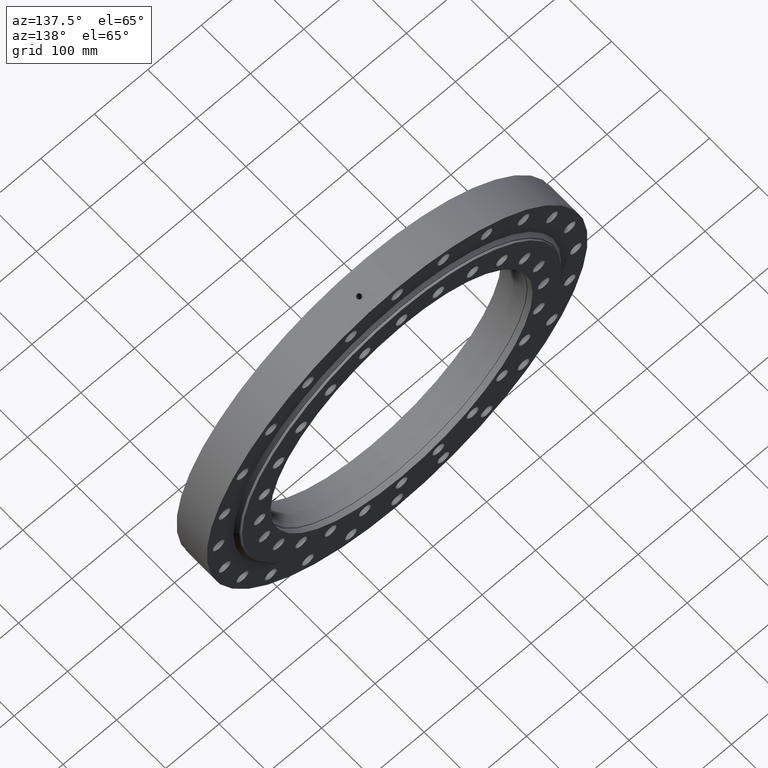
[diagram: clean part render]
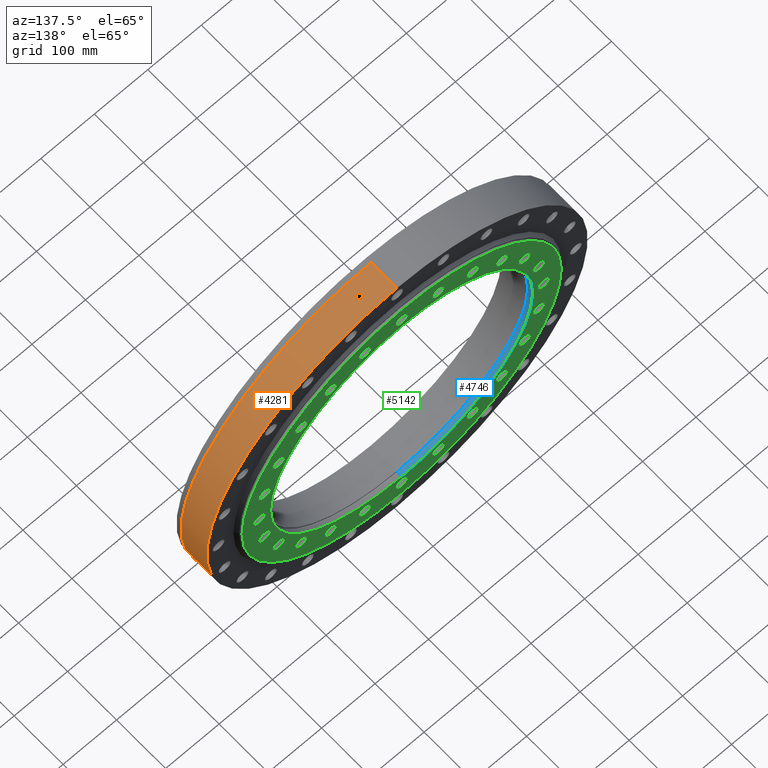
[diagram: same view with three faces highlighted in distinct colors, each labeled with its STEP entity id]
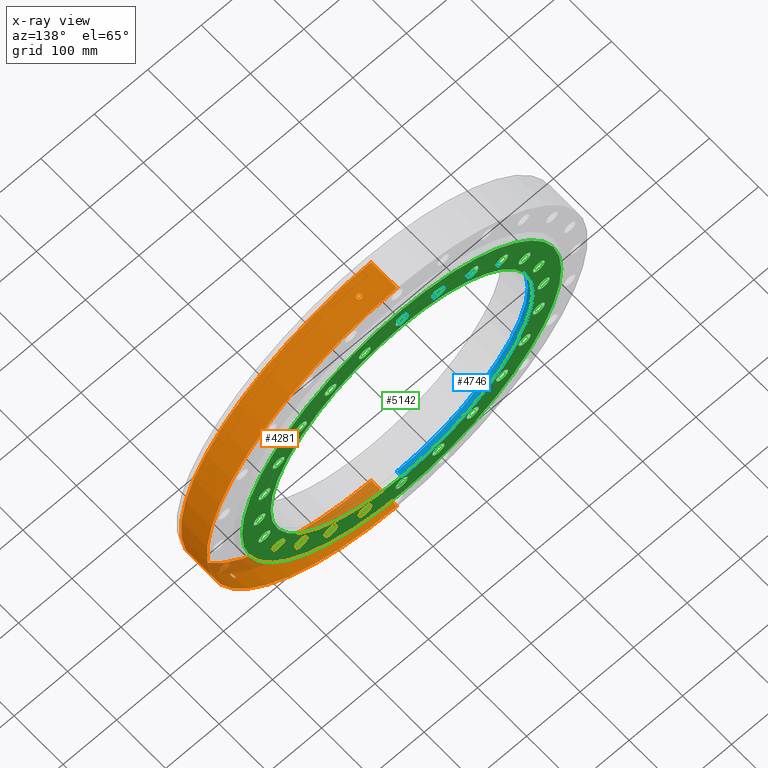
[diagram: x-ray of the same camera — body ghosted, the three highlighted faces saturated]
A machine part, auxiliary view with three faces highlighted in distinct colors.
The next image is the same camera in x-ray (body ghosted, the three faces saturated) — at least one of them is partly hidden behind the body in this view.
Their STEP definitions:

[orange] entity #4281 — the highlighted cylindrical surface (partial cylindrical patch) has radius 356 mm, axis along (-0, 1, -0).
#11 = CARTESIAN_POINT ( 'NONE',  ( 0.0000000000000000000, 22.16364734299516900, 0.0000000000000000000 ) ) ;
#115 = CARTESIAN_POINT ( 'NONE',  ( 42.00211010895635900, 0.2936307175006447900, 353.5135396931710300 ) ) ;
#141 = CARTESIAN_POINT ( 'NONE',  ( 43.10293757963455600, -2.972763685373583700, 353.3810703975702300 ) ) ;
#155 = ORIENTED_EDGE ( 'NONE', *, *, #2217, .T. ) ;
#181 = EDGE_CURVE ( 'NONE', #278, #2930, #5177, .T. ) ;
#202 = DIRECTION ( 'NONE',  ( 0.0000000000000000000, 0.0000000000000000000, 1.000000000000000000 ) ) ;
#224 = ORIENTED_EDGE ( 'NONE', *, *, #1531, .T. ) ;
#229 = CARTESIAN_POINT ( 'NONE',  ( 42.00211010895633700, 5.438586179781070800E-009, 353.5135396931708600 ) ) ;
#242 = CARTESIAN_POINT ( 'NONE',  ( 50.47296942182953200, 1.997042786059133800, 352.4038762569341500 ) ) ;
#246 = CARTESIAN_POINT ( 'NONE',  ( 43.52002240743804900, -3.392748378396286800, 353.3299474895701500 ) ) ;
#266 = CARTESIAN_POINT ( 'NONE',  ( 42.00211010895635200, -0.2936970257449002500, 353.5135396931709100 ) ) ;
#278 = VERTEX_POINT ( 'NONE', #3645 ) ;
#402 = CARTESIAN_POINT ( 'NONE',  ( 43.74561224984096000, -3.578753093429694500, 353.3021099167036700 ) ) ;
#421 = CARTESIAN_POINT ( 'NONE',  ( 42.03133644012238100, -0.5919636264769665400, 353.5100706693245900 ) ) ;
#441 = CARTESIAN_POINT ( 'NONE',  ( 44.22957454931793100, -3.904597902317170200, 353.2418494429762700 ) ) ;
#462 = CARTESIAN_POINT ( 'NONE',  ( 44.49108451599113300, -4.045561498802034500, 353.2090282160147000 ) ) ;
#483 = CARTESIAN_POINT ( 'NONE',  ( 42.14555276774754600, -1.168567819524563500, 353.4964719618494100 ) ) ;
#502 = CARTESIAN_POINT ( 'NONE',  ( 45.03160813259785300, -4.270946840081723600, 353.1405222906351500 ) ) ;
#513 = CARTESIAN_POINT ( 'NONE',  ( 50.92511386132063900, 5.438584282304933900E-009, 352.3388039631904000 ) ) ;
#522 = CARTESIAN_POINT ( 'NONE',  ( 45.30987139858683600, -4.355940549378692200, 353.1049402617370600 ) ) ;
#530 = CARTESIAN_POINT ( 'NONE',  ( 50.92511386132064600, 0.2972615204962664200, 352.3388039631904000 ) ) ;
#601 = DIRECTION ( 'NONE',  ( -0.0000000000000000000, 1.000000000000000000, -0.0000000000000000000 ) ) ;
#642 = CYLINDRICAL_SURFACE ( 'NONE', #1995, 356.0000000000000000 ) ;
#706 = CARTESIAN_POINT ( 'NONE',  ( 42.23001818551435300, -1.449124304710475400, 353.4864047205739400 ) ) ;
#733 = CARTESIAN_POINT ( 'NONE',  ( 279.6717980404868100, -0.2973286487898394400, -220.2718442761152500 ) ) ;
#810 = DIRECTION ( 'NONE',  ( -0.0000000000000000000, 1.000000000000000000, -0.0000000000000000000 ) ) ;
#873 = FACE_BOUND ( 'NONE', #2861, .T. ) ;
#895 = CARTESIAN_POINT ( 'NONE',  ( 42.59415095063960200, -2.257529204276468500, 353.4427320830004100 ) ) ;
#927 = CARTESIAN_POINT ( 'NONE',  ( 42.00211010895633700, 5.438586179781070800E-009, 353.5135396931708600 ) ) ;
#934 = CARTESIAN_POINT ( 'NONE',  ( 49.41404448791632800, -3.390112460938031500, 352.5539608692363300 ) ) ;
#984 = CARTESIAN_POINT ( 'NONE',  ( 49.82528455608154900, -2.974983297583638600, 352.4960767670276600 ) ) ;
#1008 = CARTESIAN_POINT ( 'NONE',  ( 49.18963246962010100, -3.576388338231244000, 352.5853663666238700 ) ) ;
#1010 = CARTESIAN_POINT ( 'NONE',  ( 4.359742604964577000E-014, 22.16364734299516900, -356.0000000000000000 ) ) ;
#1048 = CARTESIAN_POINT ( 'NONE',  ( 42.91772121978700500, -2.744957978383339100, 353.4035876484591700 ) ) ;
#1053 = DIRECTION ( 'NONE',  ( 0.0000000000000000000, -1.000000000000000000, 5.328613396463909800E-017 ) ) ;
#1073 = DIRECTION ( 'NONE',  ( 0.0000000000000000000, -4.872818752743839900E-017, -1.000000000000000000 ) ) ;
#1102 = FACE_BOUND ( 'NONE', #1707, .T. ) ;
#1143 = CARTESIAN_POINT ( 'NONE',  ( 0.0000000000000000000, 27.00000000000000400, 356.0000000000000000 ) ) ;
#1155 = CARTESIAN_POINT ( 'NONE',  ( 50.01352339380159900, -2.743372602601183500, 352.4693946315749100 ) ) ;
#1168 = CARTESIAN_POINT ( 'NONE',  ( 50.33391712019098900, 2.259569237038242300, 352.4237844255645200 ) ) ;
#1193 = CARTESIAN_POINT ( 'NONE',  ( 42.45431926265951700, -1.994556386775456100, 353.4595359219646300 ) ) ;
#1323 = CARTESIAN_POINT ( 'NONE',  ( 48.44277650587029900, -4.045119056933970100, 352.6887731848380600 ) ) ;
#1348 = CARTESIAN_POINT ( 'NONE',  ( 47.90618176348201000, -4.269499444270412200, 352.7620601412064600 ) ) ;
#1363 = EDGE_CURVE ( 'NONE', #2014, #2512, #2329, .T. ) ;
#1371 = CARTESIAN_POINT ( 'NONE',  ( 47.62515135274268400, -4.355841732852920400, 352.8001266040151900 ) ) ;
#1378 = CARTESIAN_POINT ( 'NONE',  ( 0.0000000000000000000, -26.00000000000003600, 0.0000000000000000000 ) ) ;
#1389 = EDGE_CURVE ( 'NONE', #2337, #2134, #3191, .T. ) ;
#1392 = CARTESIAN_POINT ( 'NONE',  ( 47.04936882199455500, -4.471353753909669500, 352.8773742628348500 ) ) ;
#1417 = CARTESIAN_POINT ( 'NONE',  ( 48.70229523263245100, -3.905343335439290800, 352.6530121202088700 ) ) ;
#1420 = CIRCLE ( 'NONE', #3703, 356.0000000000000000 ) ;
#1531 = EDGE_CURVE ( 'NONE', #2512, #2014, #2090, .T. ) ;
#1656 = CARTESIAN_POINT ( 'NONE',  ( 49.18255656551112100, 3.581688725606087000, 352.5863523966302800 ) ) ;
#1707 = EDGE_LOOP ( 'NONE', ( #2980, #155 ) ) ;
#1810 = CARTESIAN_POINT ( 'NONE',  ( 46.75990442581167600, -4.499895665181384200, 352.9158504317785500 ) ) ;
#1828 = CARTESIAN_POINT ( 'NONE',  ( 45.88229503108608800, -4.470844416282570700, 353.0310160397833700 ) ) ;
#1847 = CARTESIAN_POINT ( 'NONE',  ( 46.17790756180998800, -4.500103758451949400, 352.9924744256021500 ) ) ;
#1860 = DIRECTION ( 'NONE',  ( -0.0000000000000000000, 1.000000000000000000, -0.0000000000000000000 ) ) ;
#1939 = CARTESIAN_POINT ( 'NONE',  ( 42.23042210147770700, 1.449890769225236500, 353.4863561821254100 ) ) ;
#1995 = AXIS2_PLACEMENT_3D ( 'NONE', #11, #810, #202 ) ;
#2014 = VERTEX_POINT ( 'NONE', #4429 ) ;
#2063 = CARTESIAN_POINT ( 'NONE',  ( 279.6717980404868100, 5.438582211676132400E-009, -220.2718442761151900 ) ) ;
#2090 = B_SPLINE_CURVE_WITH_KNOTS ( 'NONE', 3,
 ( #4110, #4070, #4521, #4517, #4505, #4499, #4489, #4479, #4461, #4441, #4448, #4435, #4425, #4414, #4417, #4409, #4384, #4402, #4351, #4595, #4652, #4631, #4730, #4748, #4751, #4770, #4815, #4789, #4829, #4832, #4839, #4845, #4865, #4870 ),
 .UNSPECIFIED., .F., .F.,
 ( 4, 2, 2, 2, 2, 2, 2, 2, 2, 2, 2, 2, 2, 2, 2, 2, 4 ),
 ( 0.01406919762530289100, 0.01494832391835149700, 0.01582745021140010200, 0.01670657650444870900, 0.01758570279749731600, 0.01846482909054592000, 0.01934395538359452700, 0.02022308167664313400, 0.02110220796969174100, 0.02198133426274034900, 0.02286046055578895200, 0.02373958684883755900, 0.02461871314188616300, 0.02549783943493477000, 0.02637696572798337700, 0.02725609202103198400, 0.02813521831408059100 ),
 .UNSPECIFIED. ) ;
#2099 = CARTESIAN_POINT ( 'NONE',  ( 285.1506509015653100, 5.438586179781070000E-009, -213.1316642134941300 ) ) ;
#2134 = VERTEX_POINT ( 'NONE', #5420 ) ;
#2192 = CARTESIAN_POINT ( 'NONE',  ( 282.6114964163943500, -4.500103758451952100, -216.4874782549393900 ) ) ;
#2217 = EDGE_CURVE ( 'NONE', #2930, #278, #3110, .T. ) ;
#2329 = B_SPLINE_CURVE_WITH_KNOTS ( 'NONE', 3,
 ( #2063, #733, #3633, #3764, #4031, #4126, #4098, #3994, #4043, #4064, #4347, #4186, #4361, #4193, #4536, #4578, #4926, #2192, #4602, #4767, #4725, #4169, #3711, #4990, #4886, #5080, #4954, #5479, #5040, #5033, #5434, #3683, #5333, #2099 ),
 .UNSPECIFIED., .F., .F.,
 ( 4, 2, 2, 2, 2, 2, 2, 2, 2, 2, 2, 2, 2, 2, 2, 2, 4 ),
 ( 4.858262264036479500E-018, 0.0008793248515814352600, 0.001758649703162865500, 0.002637974554744296000, 0.003517299406325726300, 0.004396624257907157500, 0.005275949109488587700, 0.006155273961070018000, 0.007034598812651448300, 0.007913923664232878600, 0.008793248515814309700, 0.009672573367395739100, 0.01055189821897717000, 0.01143122307055860000, 0.01231054792214003100, 0.01318987277372146000, 0.01406919762530289100 ),
 .UNSPECIFIED. ) ;
#2337 = VERTEX_POINT ( 'NONE', #2426 ) ;
#2372 = CARTESIAN_POINT ( 'NONE',  ( 50.78307017494881800, -1.164872722872503500, 352.3593095857564800 ) ) ;
#2398 = CARTESIAN_POINT ( 'NONE',  ( 50.69741338742524300, -1.450677899408794300, 352.3716575400760600 ) ) ;
#2417 = CARTESIAN_POINT ( 'NONE',  ( 50.47377039727535200, -1.995686836894237100, 352.4037617046662400 ) ) ;
#2426 = CARTESIAN_POINT ( 'NONE',  ( 4.359742604964577000E-014, -26.00000000000005300, -356.0000000000000000 ) ) ;
#2437 = CARTESIAN_POINT ( 'NONE',  ( 50.89623366200181900, -0.5896875945433888200, 352.3429815778478100 ) ) ;
#2492 = CARTESIAN_POINT ( 'NONE',  ( 42.59106802719314500, 2.252564406507307800, 353.4431043440554300 ) ) ;
#2512 = VERTEX_POINT ( 'NONE', #2520 ) ;
#2520 = CARTESIAN_POINT ( 'NONE',  ( 285.1506509015653100, 5.438586179781070000E-009, -213.1316642134941300 ) ) ;
#2566 = CARTESIAN_POINT ( 'NONE',  ( 42.45295427324786900, 1.991451975893167000, 353.4596995857645500 ) ) ;
#2572 = ORIENTED_EDGE ( 'NONE', *, *, #1389, .T. ) ;
#2592 = CARTESIAN_POINT ( 'NONE',  ( 50.33690762458837800, -2.254175535764758400, 352.4233567813075200 ) ) ;
#2607 = CARTESIAN_POINT ( 'NONE',  ( 48.44209232166825500, 4.045620982505895700, 352.6888688000551600 ) ) ;
#2709 = ORIENTED_EDGE ( 'NONE', *, *, #2776, .F. ) ;
#2715 = CARTESIAN_POINT ( 'NONE',  ( 0.0000000000000000000, 27.00000000000000400, 0.0000000000000000000 ) ) ;
#2732 = CARTESIAN_POINT ( 'NONE',  ( 42.14460508944370800, 1.165422432517885000, 353.4965849482554200 ) ) ;
#2733 = DIRECTION ( 'NONE',  ( -0.0000000000000000000, 1.000000000000000000, -0.0000000000000000000 ) ) ;
#2745 = CARTESIAN_POINT ( 'NONE',  ( 50.92511386132063900, 5.438584282304933900E-009, 352.3388039631904000 ) ) ;
#2752 = CARTESIAN_POINT ( 'NONE',  ( 42.03037749075540600, 0.5854562001697856100, 353.5101846852632000 ) ) ;
#2753 = DIRECTION ( 'NONE',  ( 0.0000000000000000000, 0.0000000000000000000, 1.000000000000000000 ) ) ;
#2774 = CARTESIAN_POINT ( 'NONE',  ( 50.92511386132063200, -0.2973286487898401100, 352.3388039631904600 ) ) ;
#2776 = EDGE_CURVE ( 'NONE', #2337, #3957, #5222, .T. ) ;
#2809 = CARTESIAN_POINT ( 'NONE',  ( 43.10272664820195800, 2.972155008603632800, 353.3810944675884700 ) ) ;
#2844 = ORIENTED_EDGE ( 'NONE', *, *, #4180, .F. ) ;
#2861 = EDGE_LOOP ( 'NONE', ( #4104, #224 ) ) ;
#2930 = VERTEX_POINT ( 'NONE', #927 ) ;
#2980 = ORIENTED_EDGE ( 'NONE', *, *, #181, .T. ) ;
#3012 = EDGE_CURVE ( 'NONE', #3957, #4818, #5084, .T. ) ;
#3033 = CARTESIAN_POINT ( 'NONE',  ( 50.69557137155412400, 1.455755793880186200, 352.3719223866754100 ) ) ;
#3110 = B_SPLINE_CURVE_WITH_KNOTS ( 'NONE', 3,
 ( #3730, #115, #2752, #2732, #1939, #2566, #2492, #4394, #2809, #5493, #5514, #5534, #5550, #5570, #5651, #3945, #3927, #3798, #3811, #3827, #4080, #2607, #4721, #1656, #5631, #5158, #3849, #1168, #242, #3033, #5386, #4532, #530, #513 ),
 .UNSPECIFIED., .F., .F.,
 ( 4, 2, 2, 2, 2, 2, 2, 2, 2, 2, 2, 2, 2, 2, 2, 2, 4 ),
 ( 0.01406919762530288300, 0.01494832391835149000, 0.01582745021140009500, 0.01670657650444870200, 0.01758570279749730900, 0.01846482909054591300, 0.01934395538359452000, 0.02022308167664312700, 0.02110220796969173100, 0.02198133426274033800, 0.02286046055578894500, 0.02373958684883755200, 0.02461871314188615900, 0.02549783943493476300, 0.02637696572798337000, 0.02725609202103197700, 0.02813521831408058400 ),
 .UNSPECIFIED. ) ;
#3126 = VECTOR ( 'NONE', #1860, 1000.000000000000000 ) ;
#3191 = LINE ( 'NONE', #1010, #3126 ) ;
#3528 = EDGE_LOOP ( 'NONE', ( #2709, #2572, #2844, #3967 ) ) ;
#3633 = CARTESIAN_POINT ( 'NONE',  ( 279.6898560605669100, -0.5896875945433925900, -220.2489220971673900 ) ) ;
#3645 = CARTESIAN_POINT ( 'NONE',  ( 50.92511386132063900, 5.438584282304933900E-009, 352.3388039631904000 ) ) ;
#3683 = CARTESIAN_POINT ( 'NONE',  ( 285.1330334732049900, -0.5919636264769679900, -213.1552404468201300 ) ) ;
#3703 = AXIS2_PLACEMENT_3D ( 'NONE', #2715, #2733, #2753 ) ;
#3711 = CARTESIAN_POINT ( 'NONE',  ( 283.8016280227554900, -3.904597902317172000, -214.9248598797764200 ) ) ;
#3730 = CARTESIAN_POINT ( 'NONE',  ( 42.00211010895633700, 5.438586179781070800E-009, 353.5135396931708600 ) ) ;
#3764 = CARTESIAN_POINT ( 'NONE',  ( 279.7605782737351800, -1.164872722872507800, -220.1590836465529200 ) ) ;
#3798 = CARTESIAN_POINT ( 'NONE',  ( 46.75773373121245400, 4.500247997915083800, 352.9161407010785800 ) ) ;
#3811 = CARTESIAN_POINT ( 'NONE',  ( 47.04879294597752400, 4.471227261515162300, 352.8774486108152900 ) ) ;
#3827 = CARTESIAN_POINT ( 'NONE',  ( 47.61868604130874900, 4.357377859774762100, 352.8009968742311500 ) ) ;
#3849 = CARTESIAN_POINT ( 'NONE',  ( 50.00831355806187200, 2.750361712223379700, 352.4701343611648100 ) ) ;
#3927 = CARTESIAN_POINT ( 'NONE',  ( 46.16940908432960100, 4.499748828676173300, 352.9935887460654300 ) ) ;
#3945 = CARTESIAN_POINT ( 'NONE',  ( 45.87978960594514900, 4.470445292756909200, 353.0313408448008700 ) ) ;
#3957 = VERTEX_POINT ( 'NONE', #4257 ) ;
#3967 = ORIENTED_EDGE ( 'NONE', *, *, #3012, .F. ) ;
#3994 = CARTESIAN_POINT ( 'NONE',  ( 280.2406881105642900, -2.743372602601185300, -219.5476791075881200 ) ) ;
#4031 = CARTESIAN_POINT ( 'NONE',  ( 279.8141003096226900, -1.450677899408794300, -220.0910766697108700 ) ) ;
#4043 = CARTESIAN_POINT ( 'NONE',  ( 280.3579149365538100, -2.974983297583622100, -219.3980005598702100 ) ) ;
#4064 = CARTESIAN_POINT ( 'NONE',  ( 280.6136640736243600, -3.390112460938017300, -219.0707982648893900 ) ) ;
#4070 = CARTESIAN_POINT ( 'NONE',  ( 285.1506509015653700, 0.2936307175006440700, -213.1316642134941300 ) ) ;
#4080 = CARTESIAN_POINT ( 'NONE',  ( 47.90127746671596000, 4.271332156043716700, 352.7627277661576400 ) ) ;
#4098 = CARTESIAN_POINT ( 'NONE',  ( 280.0391260473039100, -2.254175535764762400, -219.8047191414991600 ) ) ;
#4104 = ORIENTED_EDGE ( 'NONE', *, *, #1363, .T. ) ;
#4110 = CARTESIAN_POINT ( 'NONE',  ( 285.1506509015653100, 5.438586179781070000E-009, -213.1316642134941300 ) ) ;
#4126 = CARTESIAN_POINT ( 'NONE',  ( 279.9537248268001100, -1.995686836894237500, -219.9134482411579100 ) ) ;
#4169 = CARTESIAN_POINT ( 'NONE',  ( 283.6424490230867300, -4.045561498802025600, -215.1349235407773800 ) ) ;
#4180 = EDGE_CURVE ( 'NONE', #4818, #2134, #1420, .T. ) ;
#4186 = CARTESIAN_POINT ( 'NONE',  ( 281.0553196008849600, -3.905343335439290800, -218.5039309541751000 ) ) ;
#4193 = CARTESIAN_POINT ( 'NONE',  ( 281.5478146918766800, -4.269499444270422800, -217.8690004760946700 ) ) ;
#4257 = CARTESIAN_POINT ( 'NONE',  ( 0.0000000000000000000, -26.00000000000002100, 356.0000000000000000 ) ) ;
#4281 = ADVANCED_FACE ( 'NONE', ( #1102, #873, #5118 ), #642, .T. ) ;
#4347 = CARTESIAN_POINT ( 'NONE',  ( 280.7530680413286200, -3.576388338231244500, -218.8921545048240800 ) ) ;
#4351 = CARTESIAN_POINT ( 'NONE',  ( 282.0764384466140800, 4.471227261515158700, -217.1841742140196300 ) ) ;
#4361 = CARTESIAN_POINT ( 'NONE',  ( 281.2160489547017100, -4.045119056933983400, -218.2970616763559500 ) ) ;
#4384 = CARTESIAN_POINT ( 'NONE',  ( 282.6167106849634900, 4.499748828676175100, -216.4806755177794500 ) ) ;
#4394 = CARTESIAN_POINT ( 'NONE',  ( 42.91783044911708300, 2.745440298200634300, 353.4035751284933400 ) ) ;
#4402 = CARTESIAN_POINT ( 'NONE',  ( 282.2554763870900800, 4.500247997915082000, -216.9514555851591500 ) ) ;
#4405 = AXIS2_PLACEMENT_3D ( 'NONE', #1378, #1053, #1073 ) ;
#4409 = CARTESIAN_POINT ( 'NONE',  ( 282.7942147007067900, 4.470445292756910900, -216.2487337414354200 ) ) ;
#4414 = CARTESIAN_POINT ( 'NONE',  ( 283.3166023845973300, 4.268829393079700600, -215.5638578668533100 ) ) ;
#4417 = CARTESIAN_POINT ( 'NONE',  ( 283.1432433050333700, 4.355727420734256200, -215.7915347822299700 ) ) ;
#4425 = CARTESIAN_POINT ( 'NONE',  ( 283.6457194441833300, 4.042873387018969000, -215.1306111323645500 ) ) ;
#4429 = CARTESIAN_POINT ( 'NONE',  ( 279.6717980404868100, 5.438582211676132400E-009, -220.2718442761151900 ) ) ;
#4435 = CARTESIAN_POINT ( 'NONE',  ( 283.8017497811030700, 3.904562317007737700, -214.9247000607034300 ) ) ;
#4441 = CARTESIAN_POINT ( 'NONE',  ( 284.2362062026548400, 3.387315624446575000, -214.3497656988272400 ) ) ;
#4448 = CARTESIAN_POINT ( 'NONE',  ( 284.0969349483809200, 3.577392116918643800, -214.5343595509458800 ) ) ;
#4461 = CARTESIAN_POINT ( 'NONE',  ( 284.4856417019781800, 2.972155008603648300, -214.0186034835149900 ) ) ;
#4479 = CARTESIAN_POINT ( 'NONE',  ( 284.5975586249582000, 2.745440298200628500, -213.8697190084967000 ) ) ;
#4489 = CARTESIAN_POINT ( 'NONE',  ( 284.7951731407884500, 2.252564406507301600, -213.6064990578893500 ) ) ;
#4499 = CARTESIAN_POINT ( 'NONE',  ( 284.8786019186631500, 1.991451975893159700, -213.4951866592153400 ) ) ;
#4505 = CARTESIAN_POINT ( 'NONE',  ( 285.0129532941752500, 1.449890769225231900, -213.3157964434835200 ) ) ;
#4517 = CARTESIAN_POINT ( 'NONE',  ( 285.0647201715102000, 1.165422432517879900, -213.2465911140501800 ) ) ;
#4521 = CARTESIAN_POINT ( 'NONE',  ( 285.1336116885877900, 0.5854562001697843900, -213.1544669802767100 ) ) ;
#4532 = CARTESIAN_POINT ( 'NONE',  ( 50.89624327741921700, 0.5914379281064154900, 352.3429803622761400 ) ) ;
#4536 = CARTESIAN_POINT ( 'NONE',  ( 281.7212964210710900, -4.355841732852922200, -217.6446542325629100 ) ) ;
#4578 = CARTESIAN_POINT ( 'NONE',  ( 282.0760861213657900, -4.471353753909667700, -217.1846357632894900 ) ) ;
#4595 = CARTESIAN_POINT ( 'NONE',  ( 281.7252827529031300, 4.357377859774758600, -217.6394902437257600 ) ) ;
#4602 = CARTESIAN_POINT ( 'NONE',  ( 282.7926806987400700, -4.470844416282568000, -216.2507411007461000 ) ) ;
#4631 = CARTESIAN_POINT ( 'NONE',  ( 281.2164738520095300, 4.045620982505892200, -218.2965169630646500 ) ) ;
#4652 = CARTESIAN_POINT ( 'NONE',  ( 281.5508450204276900, 4.271332156043713200, -217.8650870429832500 ) ) ;
#4721 = CARTESIAN_POINT ( 'NONE',  ( 48.69825434789316900, 3.907534679854679300, 352.6535690874946500 ) ) ;
#4725 = CARTESIAN_POINT ( 'NONE',  ( 283.3128593430950000, -4.270946840081719200, -215.5687777614145700 ) ) ;
#4730 = CARTESIAN_POINT ( 'NONE',  ( 281.0578223910732700, 3.907534679854682800, -218.5007099289800300 ) ) ;
#4748 = CARTESIAN_POINT ( 'NONE',  ( 280.7574599204173800, 3.581688725606094100, -218.8865196071140500 ) ) ;
#4751 = CARTESIAN_POINT ( 'NONE',  ( 280.6148390582720300, 3.391799149983884200, -219.0692933919638100 ) ) ;
#4767 = CARTESIAN_POINT ( 'NONE',  ( 283.1429127691565700, -4.355940549378688700, -215.7919698042520600 ) ) ;
#4770 = CARTESIAN_POINT ( 'NONE',  ( 280.3588255504421900, 2.976680160880202000, -219.3968371306455400 ) ) ;
#4789 = CARTESIAN_POINT ( 'NONE',  ( 280.0409916502929900, 2.259569237038230300, -219.8023431108494200 ) ) ;
#4815 = CARTESIAN_POINT ( 'NONE',  ( 280.2439336530512200, 2.750361712223369900, -219.5435371222830600 ) ) ;
#4818 = VERTEX_POINT ( 'NONE', #1143 ) ;
#4829 = CARTESIAN_POINT ( 'NONE',  ( 279.9542245196970500, 1.997042786059128000, -219.9128118522078800 ) ) ;
#4832 = CARTESIAN_POINT ( 'NONE',  ( 279.8152506814412300, 1.455755793880179300, -220.0896138604718700 ) ) ;
#4839 = CARTESIAN_POINT ( 'NONE',  ( 279.7618820035126000, 1.173645218378424100, -220.1574272382795500 ) ) ;
#4845 = CARTESIAN_POINT ( 'NONE',  ( 279.6898502001421900, 0.5914379281064013900, -220.2489298165774000 ) ) ;
#4865 = CARTESIAN_POINT ( 'NONE',  ( 279.6717980404869200, 0.2972615204962667500, -220.2718442761152700 ) ) ;
#4870 = CARTESIAN_POINT ( 'NONE',  ( 279.6717980404868100, 5.438582211676132400E-009, -220.2718442761151900 ) ) ;
#4886 = CARTESIAN_POINT ( 'NONE',  ( 284.2326992400695100, -3.392748378396306800, -214.3544187228957000 ) ) ;
#4926 = CARTESIAN_POINT ( 'NONE',  ( 282.2541396592027400, -4.499895665181384200, -216.9531903271758600 ) ) ;
#4931 = VECTOR ( 'NONE', #601, 1000.000000000000000 ) ;
#4954 = CARTESIAN_POINT ( 'NONE',  ( 284.5976240822315000, -2.744957978383328400, -213.8696306731048400 ) ) ;
#4990 = CARTESIAN_POINT ( 'NONE',  ( 284.0957962735859600, -3.578753093429697200, -214.5358664708191200 ) ) ;
#5033 = CARTESIAN_POINT ( 'NONE',  ( 285.0131972876864100, -1.449124304710475200, -213.3154709112225200 ) ) ;
#5040 = CARTESIAN_POINT ( 'NONE',  ( 284.8777776869489500, -1.994556386775455700, -213.4962869428217400 ) ) ;
#5080 = CARTESIAN_POINT ( 'NONE',  ( 284.4855153910145900, -2.972763685373606800, -214.0187741204848600 ) ) ;
#5084 = LINE ( 'NONE', #5393, #4931 ) ;
#5118 = FACE_OUTER_BOUND ( 'NONE', #3528, .T. ) ;
#5158 = CARTESIAN_POINT ( 'NONE',  ( 49.82382168987334100, 2.976680160880200300, 352.4962836671756500 ) ) ;
#5177 = B_SPLINE_CURVE_WITH_KNOTS ( 'NONE', 3,
 ( #2745, #2774, #2437, #2372, #2398, #2417, #2592, #1155, #984, #934, #1008, #1417, #1323, #1348, #1371, #1392, #1810, #1847, #1828, #522, #502, #462, #441, #402, #246, #141, #1048, #895, #1193, #706, #483, #421, #266, #229 ),
 .UNSPECIFIED., .F., .F.,
 ( 4, 2, 2, 2, 2, 2, 2, 2, 2, 2, 2, 2, 2, 2, 2, 2, 4 ),
 ( 1.308434361598832400E-018, 0.0008793248515814308200, 0.001758649703162860300, 0.002637974554744290400, 0.003517299406325720700, 0.004396624257907151400, 0.005275949109488581700, 0.006155273961070011900, 0.007034598812651442200, 0.007913923664232871600, 0.008793248515814301000, 0.009672573367395730400, 0.01055189821897716000, 0.01143122307055859100, 0.01231054792214002200, 0.01318987277372145300, 0.01406919762530288300 ),
 .UNSPECIFIED. ) ;
#5222 = CIRCLE ( 'NONE', #4405, 356.0000000000000000 ) ;
#5333 = CARTESIAN_POINT ( 'NONE',  ( 285.1506509015653700, -0.2936970257448986400, -213.1316642134941600 ) ) ;
#5386 = CARTESIAN_POINT ( 'NONE',  ( 50.78098381841634500, 1.173645218378438500, 352.3596104447265700 ) ) ;
#5393 = CARTESIAN_POINT ( 'NONE',  ( 0.0000000000000000000, 22.16364734299516900, 356.0000000000000000 ) ) ;
#5420 = CARTESIAN_POINT ( 'NONE',  ( 4.359742604964577000E-014, 27.00000000000000400, -356.0000000000000000 ) ) ;
#5434 = CARTESIAN_POINT ( 'NONE',  ( 285.0641484832604000, -1.168567819524563700, -213.2473553343329800 ) ) ;
#5479 = CARTESIAN_POINT ( 'NONE',  ( 284.7933092915346300, -2.257529204276457400, -213.6089828173843700 ) ) ;
#5493 = CARTESIAN_POINT ( 'NONE',  ( 43.51423928909761000, 3.387315624446561200, 353.3306580962249700 ) ) ;
#5514 = CARTESIAN_POINT ( 'NONE',  ( 43.74373788155177300, 3.577392116918634500, 353.3023425780662000 ) ) ;
#5534 = CARTESIAN_POINT ( 'NONE',  ( 44.22937526276685800, 3.904562317007730600, 353.2418749792618100 ) ) ;
#5550 = CARTESIAN_POINT ( 'NONE',  ( 44.48571465020577200, 4.042873387018964600, 353.2097042795588800 ) ) ;
#5570 = CARTESIAN_POINT ( 'NONE',  ( 45.02547585817267600, 4.268829393079697900, 353.1413039123830800 ) ) ;
#5631 = CARTESIAN_POINT ( 'NONE',  ( 49.41215373740947600, 3.391799149983883300, 352.5542259993274600 ) ) ;
#5651 = CARTESIAN_POINT ( 'NONE',  ( 45.30932939052615900, 4.355727420734256200, 353.1050090031924400 ) ) ;

[blue] entity #4746 — the highlighted cylindrical surface (partial cylindrical patch) has radius 245 mm, axis along (-0, 1, -0).
#40 = ORIENTED_EDGE ( 'NONE', *, *, #3022, .T. ) ;
#43 = CARTESIAN_POINT ( 'NONE',  ( 0.0000000000000000000, 35.99999999999998600, 245.0000000000000300 ) ) ;
#151 = VERTEX_POINT ( 'NONE', #43 ) ;
#185 = CARTESIAN_POINT ( 'NONE',  ( 0.0000000000000000000, 70.62343277129268400, 245.0000000000000300 ) ) ;
#205 = DIRECTION ( 'NONE',  ( -0.0000000000000000000, 1.000000000000000000, -0.0000000000000000000 ) ) ;
#223 = ORIENTED_EDGE ( 'NONE', *, *, #3685, .F. ) ;
#377 = AXIS2_PLACEMENT_3D ( 'NONE', #405, #413, #1777 ) ;
#405 = CARTESIAN_POINT ( 'NONE',  ( 0.0000000000000000000, 25.99999999999996800, 0.0000000000000000000 ) ) ;
#413 = DIRECTION ( 'NONE',  ( -0.0000000000000000000, 1.000000000000000000, -0.0000000000000000000 ) ) ;
#442 = FACE_OUTER_BOUND ( 'NONE', #5197, .T. ) ;
#857 = CARTESIAN_POINT ( 'NONE',  ( 3.000384657911015500E-014, 35.99999999999997200, -245.0000000000000300 ) ) ;
#1085 = EDGE_CURVE ( 'NONE', #3586, #3477, #4096, .T. ) ;
#1777 = DIRECTION ( 'NONE',  ( 0.0000000000000000000, 0.0000000000000000000, 1.000000000000000000 ) ) ;
#2193 = CARTESIAN_POINT ( 'NONE',  ( 0.0000000000000000000, 70.62343277129268400, 0.0000000000000000000 ) ) ;
#2279 = CARTESIAN_POINT ( 'NONE',  ( 3.000384657911015500E-014, 70.62343277129268400, -245.0000000000000300 ) ) ;
#2293 = EDGE_CURVE ( 'NONE', #151, #3227, #4101, .T. ) ;
#2573 = AXIS2_PLACEMENT_3D ( 'NONE', #4916, #4584, #5025 ) ;
#3022 = EDGE_CURVE ( 'NONE', #3586, #3227, #4948, .T. ) ;
#3146 = CYLINDRICAL_SURFACE ( 'NONE', #3332, 245.0000000000000300 ) ;
#3227 = VERTEX_POINT ( 'NONE', #857 ) ;
#3332 = AXIS2_PLACEMENT_3D ( 'NONE', #2193, #3916, #4687 ) ;
#3477 = VERTEX_POINT ( 'NONE', #5094 ) ;
#3586 = VERTEX_POINT ( 'NONE', #5157 ) ;
#3685 = EDGE_CURVE ( 'NONE', #3477, #151, #4455, .T. ) ;
#3916 = DIRECTION ( 'NONE',  ( -0.0000000000000000000, 1.000000000000000000, -0.0000000000000000000 ) ) ;
#4096 = CIRCLE ( 'NONE', #377, 245.0000000000000600 ) ;
#4101 = CIRCLE ( 'NONE', #2573, 245.0000000000000300 ) ;
#4300 = VECTOR ( 'NONE', #205, 1000.000000000000000 ) ;
#4455 = LINE ( 'NONE', #185, #4300 ) ;
#4584 = DIRECTION ( 'NONE',  ( 0.0000000000000000000, -1.000000000000000000, 2.727064569436389700E-017 ) ) ;
#4687 = DIRECTION ( 'NONE',  ( 0.0000000000000000000, 0.0000000000000000000, 1.000000000000000000 ) ) ;
#4726 = ORIENTED_EDGE ( 'NONE', *, *, #1085, .F. ) ;
#4746 = ADVANCED_FACE ( 'NONE', ( #442 ), #3146, .F. ) ;
#4811 = VECTOR ( 'NONE', #5548, 1000.000000000000000 ) ;
#4916 = CARTESIAN_POINT ( 'NONE',  ( 0.0000000000000000000, 35.99999999999997900, 0.0000000000000000000 ) ) ;
#4948 = LINE ( 'NONE', #2279, #4811 ) ;
#5025 = DIRECTION ( 'NONE',  ( 0.0000000000000000000, -2.832201593431521200E-017, -1.000000000000000000 ) ) ;
#5094 = CARTESIAN_POINT ( 'NONE',  ( 0.0000000000000000000, 25.99999999999996800, 245.0000000000000600 ) ) ;
#5157 = CARTESIAN_POINT ( 'NONE',  ( 3.000384657911016200E-014, 25.99999999999996800, -245.0000000000000900 ) ) ;
#5197 = EDGE_LOOP ( 'NONE', ( #4726, #40, #5845, #223 ) ) ;
#5548 = DIRECTION ( 'NONE',  ( -0.0000000000000000000, 1.000000000000000000, -0.0000000000000000000 ) ) ;
#5845 = ORIENTED_EDGE ( 'NONE', *, *, #2293, .F. ) ;

[green] entity #5142 — the highlighted planar face has unit normal (0, -1, 0).
#7 = EDGE_LOOP ( 'NONE', ( #4458, #2551 ) ) ;
#13 = AXIS2_PLACEMENT_3D ( 'NONE', #5537, #5679, #5602 ) ;
#27 = CARTESIAN_POINT ( 'NONE',  ( -256.4533068797468900, 35.99999999999997900, 68.71645647472223600 ) ) ;
#43 = CARTESIAN_POINT ( 'NONE',  ( 0.0000000000000000000, 35.99999999999998600, 245.0000000000000300 ) ) ;
#55 = FACE_BOUND ( 'NONE', #2449, .T. ) ;
#61 = FACE_BOUND ( 'NONE', #3279, .T. ) ;
#63 = AXIS2_PLACEMENT_3D ( 'NONE', #3373, #1510, #3148 ) ;
#70 = CARTESIAN_POINT ( 'NONE',  ( 68.71645647471750400, 35.99999999999997200, -256.4533068797480800 ) ) ;
#126 = FACE_BOUND ( 'NONE', #7, .T. ) ;
#129 = EDGE_CURVE ( 'NONE', #1458, #1780, #3313, .T. ) ;
#151 = VERTEX_POINT ( 'NONE', #43 ) ;
#161 = CIRCLE ( 'NONE', #2145, 11.00000000000001100 ) ;
#175 = CARTESIAN_POINT ( 'NONE',  ( 256.4533068797478600, 35.99999999999997900, 68.71645647471839900 ) ) ;
#193 = FACE_BOUND ( 'NONE', #727, .T. ) ;
#195 = FACE_BOUND ( 'NONE', #1921, .T. ) ;
#201 = FACE_BOUND ( 'NONE', #2524, .T. ) ;
#207 = FACE_BOUND ( 'NONE', #5459, .T. ) ;
#211 = FACE_BOUND ( 'NONE', #1326, .T. ) ;
#216 = CARTESIAN_POINT ( 'NONE',  ( -187.7368504050259900, 35.99999999999998600, 187.7368504050307900 ) ) ;
#231 = VERTEX_POINT ( 'NONE', #4930 ) ;
#234 = DIRECTION ( 'NONE',  ( 3.081487911019577400E-033, 1.000000000000000000, -2.727064569436389700E-017 ) ) ;
#236 = CARTESIAN_POINT ( 'NONE',  ( 229.9297447047677800, 35.99999999999997200, -143.7500000000012200 ) ) ;
#253 = DIRECTION ( 'NONE',  ( -0.7071067811865487900, 0.0000000000000000000, 0.7071067811865462400 ) ) ;
#258 = FACE_BOUND ( 'NONE', #270, .T. ) ;
#269 = FACE_BOUND ( 'NONE', #1902, .T. ) ;
#270 = EDGE_LOOP ( 'NONE', ( #4677, #4265 ) ) ;
#272 = FACE_BOUND ( 'NONE', #5818, .T. ) ;
#312 = AXIS2_PLACEMENT_3D ( 'NONE', #175, #496, #4673 ) ;
#316 = FACE_BOUND ( 'NONE', #5102, .T. ) ;
#317 = FACE_BOUND ( 'NONE', #1004, .T. ) ;
#323 = FACE_BOUND ( 'NONE', #5029, .T. ) ;
#325 = FACE_BOUND ( 'NONE', #2059, .T. ) ;
#329 = FACE_BOUND ( 'NONE', #1111, .T. ) ;
#333 = FACE_BOUND ( 'NONE', #397, .T. ) ;
#337 = DIRECTION ( 'NONE',  ( -0.0000000000000000000, 1.000000000000000000, -2.727064569436389700E-017 ) ) ;
#339 = FACE_BOUND ( 'NONE', #4116, .T. ) ;
#346 = VERTEX_POINT ( 'NONE', #5038 ) ;
#347 = CARTESIAN_POINT ( 'NONE',  ( 68.71645647471955000, 35.99999999999998600, 245.4533068797475400 ) ) ;
#351 = AXIS2_PLACEMENT_3D ( 'NONE', #844, #913, #987 ) ;
#365 = EDGE_CURVE ( 'NONE', #4201, #688, #621, .T. ) ;
#370 = CARTESIAN_POINT ( 'NONE',  ( 265.5000000000000000, 35.99999999999997900, 10.99999999999894700 ) ) ;
#388 = CARTESIAN_POINT ( 'NONE',  ( -256.4533068797468900, 35.99999999999997900, 57.71645647472223600 ) ) ;
#392 = FACE_BOUND ( 'NONE', #1025, .T. ) ;
#393 = FACE_BOUND ( 'NONE', #3691, .T. ) ;
#397 = EDGE_LOOP ( 'NONE', ( #613, #3532 ) ) ;
#401 = EDGE_CURVE ( 'NONE', #3709, #2360, #5799, .T. ) ;
#407 = CARTESIAN_POINT ( 'NONE',  ( 256.4533068797478600, 35.99999999999997900, 57.71645647471840600 ) ) ;
#409 = CARTESIAN_POINT ( 'NONE',  ( -187.7368504050301100, 35.99999999999997200, -198.7368504050266400 ) ) ;
#412 = EDGE_CURVE ( 'NONE', #1849, #3084, #2491, .T. ) ;
#414 = FACE_BOUND ( 'NONE', #5563, .T. ) ;
#415 = CARTESIAN_POINT ( 'NONE',  ( 132.7499999999985800, 35.99999999999997200, -229.9297447047693200 ) ) ;
#427 = VERTEX_POINT ( 'NONE', #5684 ) ;
#434 = DIRECTION ( 'NONE',  ( -1.540743955509788700E-033, 1.000000000000000000, -2.727064569436389100E-017 ) ) ;
#461 = FACE_BOUND ( 'NONE', #4722, .T. ) ;
#463 = FACE_BOUND ( 'NONE', #4529, .T. ) ;
#466 = DIRECTION ( 'NONE',  ( 3.081487911019577400E-033, 1.000000000000000000, -2.727064569436389400E-017 ) ) ;
#468 = FACE_BOUND ( 'NONE', #593, .T. ) ;
#485 = FACE_OUTER_BOUND ( 'NONE', #5630, .T. ) ;
#494 = AXIS2_PLACEMENT_3D ( 'NONE', #916, #950, #938 ) ;
#496 = DIRECTION ( 'NONE',  ( -3.081487911019577400E-033, 1.000000000000000000, -2.727064569436389700E-017 ) ) ;
#504 = AXIS2_PLACEMENT_3D ( 'NONE', #5268, #337, #5786 ) ;
#517 = CARTESIAN_POINT ( 'NONE',  ( -132.7500000000020200, 35.99999999999997200, -218.9297447047673300 ) ) ;
#531 = FACE_BOUND ( 'NONE', #591, .T. ) ;
#536 = VERTEX_POINT ( 'NONE', #4236 ) ;
#564 = CARTESIAN_POINT ( 'NONE',  ( 256.4533068797473400, 35.99999999999997900, -79.71645647472041700 ) ) ;
#591 = EDGE_LOOP ( 'NONE', ( #1346, #5377 ) ) ;
#593 = EDGE_LOOP ( 'NONE', ( #1145, #4114 ) ) ;
#613 = ORIENTED_EDGE ( 'NONE', *, *, #3239, .F. ) ;
#621 = CIRCLE ( 'NONE', #4691, 11.00000000000001200 ) ;
#646 = AXIS2_PLACEMENT_3D ( 'NONE', #648, #2317, #756 ) ;
#648 = CARTESIAN_POINT ( 'NONE',  ( 265.5000000000000000, 35.99999999999997900, -1.050286291813231000E-012 ) ) ;
#653 = EDGE_CURVE ( 'NONE', #1475, #2342, #5182, .T. ) ;
#660 = EDGE_CURVE ( 'NONE', #2185, #5349, #5241, .T. ) ;
#688 = VERTEX_POINT ( 'NONE', #701 ) ;
#698 = CARTESIAN_POINT ( 'NONE',  ( -265.5000000000000000, 35.99999999999997900, 2.902299396248939800E-012 ) ) ;
#701 = CARTESIAN_POINT ( 'NONE',  ( 132.7499999999985800, 35.99999999999997200, -240.9297447047692900 ) ) ;
#704 = EDGE_CURVE ( 'NONE', #725, #4768, #5184, .T. ) ;
#712 = DIRECTION ( 'NONE',  ( 3.081487911019577400E-033, 1.000000000000000000, -2.727064569436389400E-017 ) ) ;
#724 = DIRECTION ( 'NONE',  ( -1.000000000000000000, 0.0000000000000000000, -3.491481338843111700E-015 ) ) ;
#725 = VERTEX_POINT ( 'NONE', #3603 ) ;
#727 = EDGE_LOOP ( 'NONE', ( #4068, #811 ) ) ;
#732 = AXIS2_PLACEMENT_3D ( 'NONE', #5085, #5098, #5117 ) ;
#756 = DIRECTION ( 'NONE',  ( 1.000000000000000000, 0.0000000000000000000, 1.047444401652938900E-014 ) ) ;
#760 = CARTESIAN_POINT ( 'NONE',  ( 187.7368504050288000, 35.99999999999998600, 198.7368504050279200 ) ) ;
#765 = AXIS2_PLACEMENT_3D ( 'NONE', #2165, #2652, #2777 ) ;
#767 = ORIENTED_EDGE ( 'NONE', *, *, #1583, .F. ) ;
#784 = AXIS2_PLACEMENT_3D ( 'NONE', #5716, #1522, #5609 ) ;
#789 = DIRECTION ( 'NONE',  ( 0.0000000000000000000, 2.325269184068102900E-017, 1.000000000000000000 ) ) ;
#799 = VERTEX_POINT ( 'NONE', #1689 ) ;
#801 = ORIENTED_EDGE ( 'NONE', *, *, #5791, .F. ) ;
#803 = CARTESIAN_POINT ( 'NONE',  ( 265.5000000000000000, 35.99999999999997900, -11.00000000000104600 ) ) ;
#806 = CIRCLE ( 'NONE', #2022, 11.00000000000001100 ) ;
#808 = AXIS2_PLACEMENT_3D ( 'NONE', #2493, #2412, #2126 ) ;
#811 = ORIENTED_EDGE ( 'NONE', *, *, #2310, .F. ) ;
#835 = CARTESIAN_POINT ( 'NONE',  ( 132.7500000000004000, 35.99999999999998600, 229.9297447047682700 ) ) ;
#840 = VERTEX_POINT ( 'NONE', #4706 ) ;
#844 = CARTESIAN_POINT ( 'NONE',  ( -1.976292844031085600E-012, 35.99999999999997200, -265.5000000000000000 ) ) ;
#857 = CARTESIAN_POINT ( 'NONE',  ( 3.000384657911015500E-014, 35.99999999999997200, -245.0000000000000300 ) ) ;
#882 = VERTEX_POINT ( 'NONE', #4220 ) ;
#888 = DIRECTION ( 'NONE',  ( 0.5000000000000074400, 0.0000000000000000000, -0.8660254037844342700 ) ) ;
#899 = EDGE_CURVE ( 'NONE', #2834, #4558, #4689, .T. ) ;
#903 = CARTESIAN_POINT ( 'NONE',  ( -229.9297447047668800, 35.99999999999997900, 143.7500000000027600 ) ) ;
#909 = ORIENTED_EDGE ( 'NONE', *, *, #3234, .F. ) ;
#913 = DIRECTION ( 'NONE',  ( -2.189528850507526700E-047, 1.000000000000000000, -2.727064569436389100E-017 ) ) ;
#916 = CARTESIAN_POINT ( 'NONE',  ( -132.7500000000020200, 35.99999999999997200, -229.9297447047673600 ) ) ;
#919 = ORIENTED_EDGE ( 'NONE', *, *, #704, .F. ) ;
#924 = CARTESIAN_POINT ( 'NONE',  ( 256.4533068797478600, 35.99999999999997900, 79.71645647471839900 ) ) ;
#931 = DIRECTION ( 'NONE',  ( -0.9659258262890693100, 0.0000000000000000000, 0.2588190451025169100 ) ) ;
#935 = EDGE_CURVE ( 'NONE', #799, #1543, #4695, .T. ) ;
#936 = AXIS2_PLACEMENT_3D ( 'NONE', #3680, #5768, #3479 ) ;
#937 = AXIS2_PLACEMENT_3D ( 'NONE', #2974, #2993, #3010 ) ;
#938 = DIRECTION ( 'NONE',  ( -0.4999999999999958900, 0.0000000000000000000, -0.8660254037844410400 ) ) ;
#942 = CARTESIAN_POINT ( 'NONE',  ( -132.7499999999969900, 35.99999999999998600, 218.9297447047702300 ) ) ;
#950 = DIRECTION ( 'NONE',  ( -1.540743955509788700E-033, 1.000000000000000000, -2.727064569436390000E-017 ) ) ;
#967 = AXIS2_PLACEMENT_3D ( 'NONE', #5161, #5238, #3485 ) ;
#975 = DIRECTION ( 'NONE',  ( 3.081487911019577400E-033, 1.000000000000000000, -2.727064569436389400E-017 ) ) ;
#987 = DIRECTION ( 'NONE',  ( 6.982962677686258800E-015, 0.0000000000000000000, -1.000000000000000000 ) ) ;
#988 = VERTEX_POINT ( 'NONE', #5126 ) ;
#995 = VERTEX_POINT ( 'NONE', #5074 ) ;
#998 = AXIS2_PLACEMENT_3D ( 'NONE', #415, #434, #888 ) ;
#1000 = ORIENTED_EDGE ( 'NONE', *, *, #365, .F. ) ;
#1004 = EDGE_LOOP ( 'NONE', ( #4225, #3115 ) ) ;
#1013 = DIRECTION ( 'NONE',  ( -0.7071067811865438000, 0.0000000000000000000, -0.7071067811865513500 ) ) ;
#1023 = CARTESIAN_POINT ( 'NONE',  ( -256.4533068797468900, 35.99999999999997900, 68.71645647472223600 ) ) ;
#1025 = EDGE_LOOP ( 'NONE', ( #3966, #2264 ) ) ;
#1044 = CIRCLE ( 'NONE', #2893, 11.00000000000000000 ) ;
#1081 = CARTESIAN_POINT ( 'NONE',  ( 229.9297447047677800, 35.99999999999997200, -121.7500000000012100 ) ) ;
#1088 = CARTESIAN_POINT ( 'NONE',  ( -187.7368504050301100, 35.99999999999997200, -187.7368504050266400 ) ) ;
#1094 = AXIS2_PLACEMENT_3D ( 'NONE', #3096, #3015, #3208 ) ;
#1098 = VERTEX_POINT ( 'NONE', #2429 ) ;
#1105 = DIRECTION ( 'NONE',  ( -0.2588190451025145200, 0.0000000000000000000, -0.9659258262890698700 ) ) ;
#1111 = EDGE_LOOP ( 'NONE', ( #1000, #2244 ) ) ;
#1118 = ORIENTED_EDGE ( 'NONE', *, *, #935, .F. ) ;
#1123 = CARTESIAN_POINT ( 'NONE',  ( -229.9297447047698300, 35.99999999999997200, -132.7499999999977800 ) ) ;
#1127 = EDGE_CURVE ( 'NONE', #1780, #1458, #3888, .T. ) ;
#1132 = ORIENTED_EDGE ( 'NONE', *, *, #1431, .T. ) ;
#1145 = ORIENTED_EDGE ( 'NONE', *, *, #653, .F. ) ;
#1152 = ORIENTED_EDGE ( 'NONE', *, *, #412, .F. ) ;
#1195 = DIRECTION ( 'NONE',  ( 0.8660254037844326000, 0.0000000000000000000, 0.5000000000000105500 ) ) ;
#1203 = AXIS2_PLACEMENT_3D ( 'NONE', #2052, #2391, #2382 ) ;
#1206 = CARTESIAN_POINT ( 'NONE',  ( 265.5000000000000000, 35.99999999999997900, -1.050286291813231000E-012 ) ) ;
#1245 = EDGE_CURVE ( 'NONE', #427, #1342, #3613, .T. ) ;
#1248 = DIRECTION ( 'NONE',  ( 0.0000000000000000000, 1.000000000000000000, -2.727064569436389400E-017 ) ) ;
#1265 = CARTESIAN_POINT ( 'NONE',  ( 187.7368504050273000, 35.99999999999997200, -187.7368504050294600 ) ) ;
#1275 = DIRECTION ( 'NONE',  ( 0.4999999999999879000, 0.0000000000000000000, 0.8660254037844455900 ) ) ;
#1284 = ORIENTED_EDGE ( 'NONE', *, *, #4575, .F. ) ;
#1302 = DIRECTION ( 'NONE',  ( -0.8660254037844364900, 0.0000000000000000000, -0.5000000000000036600 ) ) ;
#1311 = DIRECTION ( 'NONE',  ( 9.244463733058732100E-033, 1.000000000000000000, -2.727064569436388400E-017 ) ) ;
#1321 = DIRECTION ( 'NONE',  ( -0.2588190451025145200, 0.0000000000000000000, -0.9659258262890698700 ) ) ;
#1326 = EDGE_LOOP ( 'NONE', ( #2870, #4349 ) ) ;
#1328 = DIRECTION ( 'NONE',  ( 0.9659258262890708700, 0.0000000000000000000, -0.2588190451025110300 ) ) ;
#1340 = ORIENTED_EDGE ( 'NONE', *, *, #3220, .F. ) ;
#1342 = VERTEX_POINT ( 'NONE', #3717 ) ;
#1346 = ORIENTED_EDGE ( 'NONE', *, *, #2293, .T. ) ;
#1354 = DIRECTION ( 'NONE',  ( 0.7071067811865537900, 0.0000000000000000000, -0.7071067811865412400 ) ) ;
#1364 = EDGE_CURVE ( 'NONE', #995, #4045, #3251, .T. ) ;
#1368 = CIRCLE ( 'NONE', #5601, 11.00000000000001100 ) ;
#1396 = EDGE_CURVE ( 'NONE', #4979, #4833, #3180, .T. ) ;
#1415 = CARTESIAN_POINT ( 'NONE',  ( 256.4533068797473400, 35.99999999999997900, -68.71645647472043100 ) ) ;
#1431 = EDGE_CURVE ( 'NONE', #1479, #5658, #3113, .T. ) ;
#1442 = DIRECTION ( 'NONE',  ( -3.081487911019577400E-033, 1.000000000000000000, -2.727064569436389100E-017 ) ) ;
#1445 = ORIENTED_EDGE ( 'NONE', *, *, #1127, .F. ) ;
#1453 = CIRCLE ( 'NONE', #5522, 11.00000000000000500 ) ;
#1458 = VERTEX_POINT ( 'NONE', #5796 ) ;
#1470 = DIRECTION ( 'NONE',  ( -0.8660254037844399300, 0.0000000000000000000, 0.4999999999999977200 ) ) ;
#1475 = VERTEX_POINT ( 'NONE', #1736 ) ;
#1479 = VERTEX_POINT ( 'NONE', #4934 ) ;
#1493 = DIRECTION ( 'NONE',  ( 3.081487911019577400E-033, 1.000000000000000000, -2.727064569436389700E-017 ) ) ;
#1494 = DIRECTION ( 'NONE',  ( 0.2588190451025276200, 0.0000000000000000000, -0.9659258262890664200 ) ) ;
#1497 = DIRECTION ( 'NONE',  ( 0.9659258262890708700, 0.0000000000000000000, -0.2588190451025110300 ) ) ;
#1506 = ORIENTED_EDGE ( 'NONE', *, *, #3564, .F. ) ;
#1510 = DIRECTION ( 'NONE',  ( 9.244463733058732100E-033, 1.000000000000000000, -2.727064569436389100E-017 ) ) ;
#1522 = DIRECTION ( 'NONE',  ( 1.540743955509788700E-033, 1.000000000000000000, -2.727064569436389700E-017 ) ) ;
#1527 = CARTESIAN_POINT ( 'NONE',  ( 0.0000000000000000000, 35.99999999999998600, 298.4125000000000200 ) ) ;
#1528 = CARTESIAN_POINT ( 'NONE',  ( 3.830269434956789300E-012, 35.99999999999998600, 265.5000000000000000 ) ) ;
#1532 = CARTESIAN_POINT ( 'NONE',  ( 256.4533068797473400, 35.99999999999997900, -68.71645647472043100 ) ) ;
#1543 = VERTEX_POINT ( 'NONE', #1790 ) ;
#1565 = CIRCLE ( 'NONE', #998, 11.00000000000001200 ) ;
#1576 = EDGE_CURVE ( 'NONE', #2409, #4325, #2704, .T. ) ;
#1583 = EDGE_CURVE ( 'NONE', #1951, #988, #2422, .T. ) ;
#1613 = EDGE_CURVE ( 'NONE', #4833, #4979, #2266, .T. ) ;
#1623 = AXIS2_PLACEMENT_3D ( 'NONE', #1023, #975, #931 ) ;
#1645 = DIRECTION ( 'NONE',  ( -3.081487911019577400E-033, 1.000000000000000000, -2.727064569436389700E-017 ) ) ;
#1647 = EDGE_CURVE ( 'NONE', #4330, #3652, #2025, .T. ) ;
#1689 = CARTESIAN_POINT ( 'NONE',  ( 187.7368504050273000, 35.99999999999997200, -176.7368504050294600 ) ) ;
#1720 = ORIENTED_EDGE ( 'NONE', *, *, #4280, .F. ) ;
#1730 = CARTESIAN_POINT ( 'NONE',  ( 0.0000000000000000000, 35.99999999999997900, -1.827927008577011100E-015 ) ) ;
#1736 = CARTESIAN_POINT ( 'NONE',  ( 132.7500000000004000, 35.99999999999998600, 240.9297447047682400 ) ) ;
#1746 = DIRECTION ( 'NONE',  ( -0.0000000000000000000, 1.000000000000000000, -2.727064569436389700E-017 ) ) ;
#1761 = ORIENTED_EDGE ( 'NONE', *, *, #2000, .F. ) ;
#1768 = CIRCLE ( 'NONE', #3091, 298.4125000000000200 ) ;
#1780 = VERTEX_POINT ( 'NONE', #517 ) ;
#1783 = ORIENTED_EDGE ( 'NONE', *, *, #2636, .F. ) ;
#1790 = CARTESIAN_POINT ( 'NONE',  ( 187.7368504050273000, 35.99999999999997200, -198.7368504050294900 ) ) ;
#1796 = DIRECTION ( 'NONE',  ( 0.4999999999999879000, 0.0000000000000000000, 0.8660254037844455900 ) ) ;
#1801 = ORIENTED_EDGE ( 'NONE', *, *, #660, .F. ) ;
#1830 = EDGE_CURVE ( 'NONE', #231, #4326, #5345, .T. ) ;
#1836 = DIRECTION ( 'NONE',  ( -3.081487911019577400E-033, 1.000000000000000000, -2.727064569436389700E-017 ) ) ;
#1849 = VERTEX_POINT ( 'NONE', #1081 ) ;
#1867 = EDGE_CURVE ( 'NONE', #840, #2934, #4171, .T. ) ;
#1871 = DIRECTION ( 'NONE',  ( 1.540743955509788700E-033, 1.000000000000000000, -2.727064569436389100E-017 ) ) ;
#1875 = CARTESIAN_POINT ( 'NONE',  ( -229.9297447047668800, 35.99999999999997900, 132.7500000000027900 ) ) ;
#1896 = CIRCLE ( 'NONE', #2070, 10.99999999999998000 ) ;
#1902 = EDGE_LOOP ( 'NONE', ( #801, #3094 ) ) ;
#1920 = EDGE_CURVE ( 'NONE', #2585, #1098, #3747, .T. ) ;
#1921 = EDGE_LOOP ( 'NONE', ( #2665, #4534 ) ) ;
#1927 = CARTESIAN_POINT ( 'NONE',  ( -68.71645647472132600, 35.99999999999997200, -256.4533068797471200 ) ) ;
#1950 = CARTESIAN_POINT ( 'NONE',  ( -265.5000000000000000, 35.99999999999997900, 11.00000000000289700 ) ) ;
#1951 = VERTEX_POINT ( 'NONE', #5302 ) ;
#1964 = CIRCLE ( 'NONE', #4694, 10.99999999999999300 ) ;
#1970 = CIRCLE ( 'NONE', #5599, 10.99999999999998000 ) ;
#2000 = EDGE_CURVE ( 'NONE', #346, #536, #161, .T. ) ;
#2022 = AXIS2_PLACEMENT_3D ( 'NONE', #698, #712, #724 ) ;
#2025 = CIRCLE ( 'NONE', #936, 10.99999999999998000 ) ;
#2052 = CARTESIAN_POINT ( 'NONE',  ( 68.71645647471750400, 35.99999999999997200, -256.4533068797480800 ) ) ;
#2059 = EDGE_LOOP ( 'NONE', ( #1118, #2252 ) ) ;
#2070 = AXIS2_PLACEMENT_3D ( 'NONE', #216, #234, #253 ) ;
#2126 = DIRECTION ( 'NONE',  ( -0.8660254037844364900, 0.0000000000000000000, -0.5000000000000036600 ) ) ;
#2143 = VERTEX_POINT ( 'NONE', #942 ) ;
#2145 = AXIS2_PLACEMENT_3D ( 'NONE', #1528, #4323, #5011 ) ;
#2165 = CARTESIAN_POINT ( 'NONE',  ( 256.4533068797478600, 35.99999999999997900, 68.71645647471839900 ) ) ;
#2185 = VERTEX_POINT ( 'NONE', #4113 ) ;
#2230 = ORIENTED_EDGE ( 'NONE', *, *, #4354, .F. ) ;
#2244 = ORIENTED_EDGE ( 'NONE', *, *, #3854, .F. ) ;
#2252 = ORIENTED_EDGE ( 'NONE', *, *, #2367, .F. ) ;
#2264 = ORIENTED_EDGE ( 'NONE', *, *, #1613, .F. ) ;
#2266 = CIRCLE ( 'NONE', #765, 11.00000000000000900 ) ;
#2268 = EDGE_CURVE ( 'NONE', #4976, #882, #3537, .T. ) ;
#2293 = EDGE_CURVE ( 'NONE', #151, #3227, #4101, .T. ) ;
#2310 = EDGE_CURVE ( 'NONE', #882, #4976, #3329, .T. ) ;
#2314 = CIRCLE ( 'NONE', #5418, 10.99999999999999300 ) ;
#2317 = DIRECTION ( 'NONE',  ( -3.081487911019577400E-033, 1.000000000000000000, -2.727064569436389700E-017 ) ) ;
#2342 = VERTEX_POINT ( 'NONE', #3275 ) ;
#2349 = ORIENTED_EDGE ( 'NONE', *, *, #2558, .F. ) ;
#2360 = VERTEX_POINT ( 'NONE', #5297 ) ;
#2367 = EDGE_CURVE ( 'NONE', #1543, #799, #5761, .T. ) ;
#2382 = DIRECTION ( 'NONE',  ( 0.2588190451025276200, 0.0000000000000000000, -0.9659258262890664200 ) ) ;
#2391 = DIRECTION ( 'NONE',  ( -1.540743955509788700E-033, 1.000000000000000000, -2.727064569436389100E-017 ) ) ;
#2394 = CIRCLE ( 'NONE', #2509, 10.99999999999999100 ) ;
#2407 = DIRECTION ( 'NONE',  ( -1.540743955509788700E-033, 1.000000000000000000, -2.727064569436389100E-017 ) ) ;
#2409 = VERTEX_POINT ( 'NONE', #803 ) ;
#2412 = DIRECTION ( 'NONE',  ( 9.244463733058732100E-033, 1.000000000000000000, -2.727064569436388400E-017 ) ) ;
#2422 = CIRCLE ( 'NONE', #808, 10.99999999999998400 ) ;
#2429 = CARTESIAN_POINT ( 'NONE',  ( -68.71645647471572700, 35.99999999999998600, 245.4533068797486000 ) ) ;
#2434 = EDGE_CURVE ( 'NONE', #2342, #1475, #3213, .T. ) ;
#2449 = EDGE_LOOP ( 'NONE', ( #1720, #1340 ) ) ;
#2458 = DIRECTION ( 'NONE',  ( 0.5000000000000074400, 0.0000000000000000000, -0.8660254037844342700 ) ) ;
#2479 = EDGE_CURVE ( 'NONE', #4326, #231, #4675, .T. ) ;
#2480 = DIRECTION ( 'NONE',  ( -1.540743955509788700E-033, 1.000000000000000000, -2.727064569436389100E-017 ) ) ;
#2491 = CIRCLE ( 'NONE', #4889, 11.00000000000000000 ) ;
#2493 = CARTESIAN_POINT ( 'NONE',  ( -229.9297447047698300, 35.99999999999997200, -132.7499999999977800 ) ) ;
#2509 = AXIS2_PLACEMENT_3D ( 'NONE', #4752, #5185, #4442 ) ;
#2523 = CARTESIAN_POINT ( 'NONE',  ( -187.7368504050259900, 35.99999999999998600, 176.7368504050307900 ) ) ;
#2524 = EDGE_LOOP ( 'NONE', ( #4614, #2891 ) ) ;
#2526 = CARTESIAN_POINT ( 'NONE',  ( 187.7368504050288000, 35.99999999999998600, 176.7368504050279500 ) ) ;
#2536 = CIRCLE ( 'NONE', #2824, 11.00000000000001600 ) ;
#2551 = ORIENTED_EDGE ( 'NONE', *, *, #2479, .F. ) ;
#2558 = EDGE_CURVE ( 'NONE', #4325, #2409, #3122, .T. ) ;
#2573 = AXIS2_PLACEMENT_3D ( 'NONE', #4916, #4584, #5025 ) ;
#2585 = VERTEX_POINT ( 'NONE', #3359 ) ;
#2636 = EDGE_CURVE ( 'NONE', #3456, #3576, #1964, .T. ) ;
#2651 = CARTESIAN_POINT ( 'NONE',  ( 132.7499999999985800, 35.99999999999997200, -218.9297447047693500 ) ) ;
#2652 = DIRECTION ( 'NONE',  ( -3.081487911019577400E-033, 1.000000000000000000, -2.727064569436389700E-017 ) ) ;
#2665 = ORIENTED_EDGE ( 'NONE', *, *, #2668, .F. ) ;
#2668 = EDGE_CURVE ( 'NONE', #3988, #2143, #3892, .T. ) ;
#2704 = CIRCLE ( 'NONE', #646, 11.00000000000001100 ) ;
#2730 = DIRECTION ( 'NONE',  ( -1.540743955509788700E-033, 1.000000000000000000, -2.727064569436389700E-017 ) ) ;
#2742 = CIRCLE ( 'NONE', #732, 11.00000000000001100 ) ;
#2750 = ORIENTED_EDGE ( 'NONE', *, *, #899, .F. ) ;
#2759 = CARTESIAN_POINT ( 'NONE',  ( 132.7499999999985800, 35.99999999999997200, -229.9297447047693200 ) ) ;
#2777 = DIRECTION ( 'NONE',  ( 0.9659258262890655400, 0.0000000000000000000, 0.2588190451025311200 ) ) ;
#2794 = DIRECTION ( 'NONE',  ( -1.540743955509788700E-033, 1.000000000000000000, -2.727064569436390000E-017 ) ) ;
#2811 = CIRCLE ( 'NONE', #784, 10.99999999999999500 ) ;
#2814 = DIRECTION ( 'NONE',  ( -0.4999999999999958900, 0.0000000000000000000, -0.8660254037844410400 ) ) ;
#2817 = AXIS2_PLACEMENT_3D ( 'NONE', #1875, #1493, #1470 ) ;
#2824 = AXIS2_PLACEMENT_3D ( 'NONE', #3816, #3641, #1321 ) ;
#2830 = CARTESIAN_POINT ( 'NONE',  ( -132.7500000000020200, 35.99999999999997200, -229.9297447047673600 ) ) ;
#2834 = VERTEX_POINT ( 'NONE', #1950 ) ;
#2870 = ORIENTED_EDGE ( 'NONE', *, *, #4718, .F. ) ;
#2872 = EDGE_CURVE ( 'NONE', #2934, #840, #5608, .T. ) ;
#2887 = AXIS2_PLACEMENT_3D ( 'NONE', #835, #2730, #1796 ) ;
#2890 = DIRECTION ( 'NONE',  ( -3.081487911019577400E-033, 1.000000000000000000, -2.727064569436389100E-017 ) ) ;
#2891 = ORIENTED_EDGE ( 'NONE', *, *, #1647, .F. ) ;
#2893 = AXIS2_PLACEMENT_3D ( 'NONE', #3937, #5772, #3955 ) ;
#2925 = EDGE_CURVE ( 'NONE', #5349, #2185, #5131, .T. ) ;
#2927 = AXIS2_PLACEMENT_3D ( 'NONE', #4092, #3721, #4511 ) ;
#2934 = VERTEX_POINT ( 'NONE', #3628 ) ;
#2974 = CARTESIAN_POINT ( 'NONE',  ( 0.0000000000000000000, 35.99999999999997900, 0.0000000000000000000 ) ) ;
#2993 = DIRECTION ( 'NONE',  ( 0.0000000000000000000, -1.000000000000000000, 2.727064569436389700E-017 ) ) ;
#3010 = DIRECTION ( 'NONE',  ( 0.0000000000000000000, -2.832201593431521200E-017, -1.000000000000000000 ) ) ;
#3015 = DIRECTION ( 'NONE',  ( 1.540743955509788700E-033, 1.000000000000000000, -2.727064569436389700E-017 ) ) ;
#3023 = DIRECTION ( 'NONE',  ( -1.540743955509788700E-033, 1.000000000000000000, -2.727064569436389700E-017 ) ) ;
#3059 = VERTEX_POINT ( 'NONE', #2526 ) ;
#3084 = VERTEX_POINT ( 'NONE', #236 ) ;
#3086 = CARTESIAN_POINT ( 'NONE',  ( -68.71645647472132600, 35.99999999999997200, -245.4533068797470900 ) ) ;
#3091 = AXIS2_PLACEMENT_3D ( 'NONE', #1730, #1746, #789 ) ;
#3094 = ORIENTED_EDGE ( 'NONE', *, *, #1364, .F. ) ;
#3096 = CARTESIAN_POINT ( 'NONE',  ( -68.71645647471572700, 35.99999999999998600, 256.4533068797486000 ) ) ;
#3111 = AXIS2_PLACEMENT_3D ( 'NONE', #4820, #4798, #4836 ) ;
#3113 = CIRCLE ( 'NONE', #504, 298.4125000000000200 ) ;
#3115 = ORIENTED_EDGE ( 'NONE', *, *, #401, .F. ) ;
#3122 = CIRCLE ( 'NONE', #4933, 11.00000000000001100 ) ;
#3148 = DIRECTION ( 'NONE',  ( -0.9659258262890670900, 0.0000000000000000000, -0.2588190451025252400 ) ) ;
#3162 = ORIENTED_EDGE ( 'NONE', *, *, #129, .F. ) ;
#3174 = AXIS2_PLACEMENT_3D ( 'NONE', #4680, #4714, #4736 ) ;
#3180 = CIRCLE ( 'NONE', #312, 11.00000000000000900 ) ;
#3195 = CIRCLE ( 'NONE', #3422, 10.99999999999998400 ) ;
#3208 = DIRECTION ( 'NONE',  ( -0.2588190451025216800, 0.0000000000000000000, 0.9659258262890679800 ) ) ;
#3213 = CIRCLE ( 'NONE', #2887, 10.99999999999999800 ) ;
#3220 = EDGE_CURVE ( 'NONE', #4160, #5573, #4032, .T. ) ;
#3227 = VERTEX_POINT ( 'NONE', #857 ) ;
#3234 = EDGE_CURVE ( 'NONE', #1098, #2585, #3932, .T. ) ;
#3239 = EDGE_CURVE ( 'NONE', #4377, #3059, #3921, .T. ) ;
#3251 = CIRCLE ( 'NONE', #351, 11.00000000000001100 ) ;
#3263 = EDGE_CURVE ( 'NONE', #3059, #4377, #3786, .T. ) ;
#3275 = CARTESIAN_POINT ( 'NONE',  ( 132.7500000000004000, 35.99999999999998600, 218.9297447047682700 ) ) ;
#3279 = EDGE_LOOP ( 'NONE', ( #2750, #2230 ) ) ;
#3281 = AXIS2_PLACEMENT_3D ( 'NONE', #4389, #4371, #4408 ) ;
#3313 = CIRCLE ( 'NONE', #4342, 10.99999999999998900 ) ;
#3329 = CIRCLE ( 'NONE', #2927, 11.00000000000000400 ) ;
#3359 = CARTESIAN_POINT ( 'NONE',  ( -68.71645647471572700, 35.99999999999998600, 267.4533068797486000 ) ) ;
#3373 = CARTESIAN_POINT ( 'NONE',  ( -256.4533068797484200, 35.99999999999997900, -68.71645647471662200 ) ) ;
#3405 = EDGE_CURVE ( 'NONE', #3576, #3456, #2314, .T. ) ;
#3422 = AXIS2_PLACEMENT_3D ( 'NONE', #1123, #1311, #1302 ) ;
#3434 = EDGE_CURVE ( 'NONE', #3652, #4330, #1970, .T. ) ;
#3447 = CARTESIAN_POINT ( 'NONE',  ( -1.976292844031085600E-012, 35.99999999999997200, -254.5000000000000000 ) ) ;
#3456 = VERTEX_POINT ( 'NONE', #347 ) ;
#3479 = DIRECTION ( 'NONE',  ( -0.7071067811865438000, 0.0000000000000000000, -0.7071067811865513500 ) ) ;
#3485 = DIRECTION ( 'NONE',  ( -1.000000000000000000, 0.0000000000000000000, -3.491481338843111700E-015 ) ) ;
#3517 = CARTESIAN_POINT ( 'NONE',  ( 132.7500000000004000, 35.99999999999998600, 229.9297447047682700 ) ) ;
#3532 = ORIENTED_EDGE ( 'NONE', *, *, #3263, .F. ) ;
#3537 = CIRCLE ( 'NONE', #2817, 11.00000000000000400 ) ;
#3564 = EDGE_CURVE ( 'NONE', #536, #346, #2742, .T. ) ;
#3576 = VERTEX_POINT ( 'NONE', #4801 ) ;
#3578 = ORIENTED_EDGE ( 'NONE', *, *, #4224, .T. ) ;
#3591 = EDGE_CURVE ( 'NONE', #2143, #3988, #2811, .T. ) ;
#3603 = CARTESIAN_POINT ( 'NONE',  ( -68.71645647472132600, 35.99999999999997200, -267.4533068797471200 ) ) ;
#3613 = CIRCLE ( 'NONE', #63, 10.99999999999999100 ) ;
#3628 = CARTESIAN_POINT ( 'NONE',  ( 68.71645647471750400, 35.99999999999997200, -245.4533068797480800 ) ) ;
#3641 = DIRECTION ( 'NONE',  ( 1.540743955509788700E-033, 1.000000000000000000, -2.727064569436389100E-017 ) ) ;
#3652 = VERTEX_POINT ( 'NONE', #3723 ) ;
#3662 = CARTESIAN_POINT ( 'NONE',  ( -265.5000000000000000, 35.99999999999997900, -10.99999999999709400 ) ) ;
#3669 = CARTESIAN_POINT ( 'NONE',  ( -132.7499999999969900, 35.99999999999998600, 229.9297447047702300 ) ) ;
#3680 = CARTESIAN_POINT ( 'NONE',  ( -187.7368504050301100, 35.99999999999997200, -187.7368504050266400 ) ) ;
#3691 = EDGE_LOOP ( 'NONE', ( #2349, #4431 ) ) ;
#3699 = DIRECTION ( 'NONE',  ( 1.540743955509788700E-033, 1.000000000000000000, -2.727064569436389700E-017 ) ) ;
#3709 = VERTEX_POINT ( 'NONE', #564 ) ;
#3717 = CARTESIAN_POINT ( 'NONE',  ( -256.4533068797484200, 35.99999999999997900, -57.71645647471663000 ) ) ;
#3721 = DIRECTION ( 'NONE',  ( 3.081487911019577400E-033, 1.000000000000000000, -2.727064569436389700E-017 ) ) ;
#3723 = CARTESIAN_POINT ( 'NONE',  ( -187.7368504050301100, 35.99999999999997200, -176.7368504050266200 ) ) ;
#3742 = DIRECTION ( 'NONE',  ( -0.5000000000000007800, 0.0000000000000000000, 0.8660254037844382600 ) ) ;
#3747 = CIRCLE ( 'NONE', #1094, 10.99999999999998000 ) ;
#3786 = CIRCLE ( 'NONE', #5243, 10.99999999999998000 ) ;
#3794 = EDGE_CURVE ( 'NONE', #3227, #151, #5201, .T. ) ;
#3803 = DIRECTION ( 'NONE',  ( -3.081487911019577400E-033, 1.000000000000000000, -2.727064569436389700E-017 ) ) ;
#3804 = CARTESIAN_POINT ( 'NONE',  ( -187.7368504050259900, 35.99999999999998600, 198.7368504050307900 ) ) ;
#3816 = CARTESIAN_POINT ( 'NONE',  ( -68.71645647472132600, 35.99999999999997200, -256.4533068797471200 ) ) ;
#3854 = EDGE_CURVE ( 'NONE', #688, #4201, #1565, .T. ) ;
#3888 = CIRCLE ( 'NONE', #494, 10.99999999999998900 ) ;
#3892 = CIRCLE ( 'NONE', #4701, 10.99999999999999500 ) ;
#3920 = AXIS2_PLACEMENT_3D ( 'NONE', #4507, #5490, #5698 ) ;
#3921 = CIRCLE ( 'NONE', #3111, 10.99999999999998000 ) ;
#3932 = CIRCLE ( 'NONE', #3174, 10.99999999999998000 ) ;
#3937 = CARTESIAN_POINT ( 'NONE',  ( 229.9297447047677800, 35.99999999999997200, -132.7500000000011900 ) ) ;
#3955 = DIRECTION ( 'NONE',  ( 0.8660254037844428200, 0.0000000000000000000, -0.4999999999999928900 ) ) ;
#3966 = ORIENTED_EDGE ( 'NONE', *, *, #1396, .F. ) ;
#3988 = VERTEX_POINT ( 'NONE', #4582 ) ;
#4032 = CIRCLE ( 'NONE', #3281, 10.99999999999998000 ) ;
#4045 = VERTEX_POINT ( 'NONE', #3447 ) ;
#4068 = ORIENTED_EDGE ( 'NONE', *, *, #2268, .F. ) ;
#4083 = AXIS2_PLACEMENT_3D ( 'NONE', #4917, #1836, #4476 ) ;
#4092 = CARTESIAN_POINT ( 'NONE',  ( -229.9297447047668800, 35.99999999999997900, 132.7500000000027900 ) ) ;
#4101 = CIRCLE ( 'NONE', #2573, 245.0000000000000300 ) ;
#4113 = CARTESIAN_POINT ( 'NONE',  ( 229.9297447047688400, 35.99999999999997900, 143.7499999999993700 ) ) ;
#4114 = ORIENTED_EDGE ( 'NONE', *, *, #2434, .F. ) ;
#4116 = EDGE_LOOP ( 'NONE', ( #1801, #4155 ) ) ;
#4155 = ORIENTED_EDGE ( 'NONE', *, *, #2925, .F. ) ;
#4160 = VERTEX_POINT ( 'NONE', #2523 ) ;
#4171 = CIRCLE ( 'NONE', #1203, 10.99999999999999800 ) ;
#4201 = VERTEX_POINT ( 'NONE', #2651 ) ;
#4207 = AXIS2_PLACEMENT_3D ( 'NONE', #70, #2407, #1494 ) ;
#4212 = CARTESIAN_POINT ( 'NONE',  ( 68.71645647471955000, 35.99999999999998600, 256.4533068797475700 ) ) ;
#4220 = CARTESIAN_POINT ( 'NONE',  ( -229.9297447047668800, 35.99999999999997900, 121.7500000000027900 ) ) ;
#4224 = EDGE_CURVE ( 'NONE', #5658, #1479, #1768, .T. ) ;
#4225 = ORIENTED_EDGE ( 'NONE', *, *, #5738, .F. ) ;
#4236 = CARTESIAN_POINT ( 'NONE',  ( 3.831616546435851400E-012, 35.99999999999998600, 254.5000000000000000 ) ) ;
#4265 = ORIENTED_EDGE ( 'NONE', *, *, #1867, .F. ) ;
#4280 = EDGE_CURVE ( 'NONE', #5573, #4160, #1896, .T. ) ;
#4283 = CARTESIAN_POINT ( 'NONE',  ( 229.9297447047688400, 35.99999999999997900, 132.7499999999993700 ) ) ;
#4323 = DIRECTION ( 'NONE',  ( 0.0000000000000000000, 1.000000000000000000, -2.727064569436389700E-017 ) ) ;
#4325 = VERTEX_POINT ( 'NONE', #370 ) ;
#4326 = VERTEX_POINT ( 'NONE', #388 ) ;
#4330 = VERTEX_POINT ( 'NONE', #409 ) ;
#4342 = AXIS2_PLACEMENT_3D ( 'NONE', #2830, #2794, #2814 ) ;
#4349 = ORIENTED_EDGE ( 'NONE', *, *, #1245, .F. ) ;
#4354 = EDGE_CURVE ( 'NONE', #4558, #2834, #806, .T. ) ;
#4367 = CARTESIAN_POINT ( 'NONE',  ( 229.9297447047688400, 35.99999999999997900, 121.7499999999993700 ) ) ;
#4371 = DIRECTION ( 'NONE',  ( 3.081487911019577400E-033, 1.000000000000000000, -2.727064569436389700E-017 ) ) ;
#4377 = VERTEX_POINT ( 'NONE', #760 ) ;
#4386 = ORIENTED_EDGE ( 'NONE', *, *, #3405, .F. ) ;
#4389 = CARTESIAN_POINT ( 'NONE',  ( -187.7368504050259900, 35.99999999999998600, 187.7368504050307900 ) ) ;
#4408 = DIRECTION ( 'NONE',  ( -0.7071067811865487900, 0.0000000000000000000, 0.7071067811865462400 ) ) ;
#4431 = ORIENTED_EDGE ( 'NONE', *, *, #1576, .F. ) ;
#4442 = DIRECTION ( 'NONE',  ( -0.9659258262890670900, 0.0000000000000000000, -0.2588190451025252400 ) ) ;
#4458 = ORIENTED_EDGE ( 'NONE', *, *, #1830, .F. ) ;
#4476 = DIRECTION ( 'NONE',  ( 0.8660254037844326000, 0.0000000000000000000, 0.5000000000000105500 ) ) ;
#4495 = EDGE_CURVE ( 'NONE', #3084, #1849, #1044, .T. ) ;
#4507 = CARTESIAN_POINT ( 'NONE',  ( 0.0000000000000000000, 35.99999999999998600, 298.4125000000000200 ) ) ;
#4511 = DIRECTION ( 'NONE',  ( -0.8660254037844399300, 0.0000000000000000000, 0.4999999999999977200 ) ) ;
#4529 = EDGE_LOOP ( 'NONE', ( #4386, #1783 ) ) ;
#4534 = ORIENTED_EDGE ( 'NONE', *, *, #3591, .F. ) ;
#4558 = VERTEX_POINT ( 'NONE', #3662 ) ;
#4575 = EDGE_CURVE ( 'NONE', #4768, #725, #2536, .T. ) ;
#4580 = DIRECTION ( 'NONE',  ( 1.000000000000000000, 0.0000000000000000000, 1.047444401652938900E-014 ) ) ;
#4582 = CARTESIAN_POINT ( 'NONE',  ( -132.7499999999969900, 35.99999999999998600, 240.9297447047702600 ) ) ;
#4584 = DIRECTION ( 'NONE',  ( 0.0000000000000000000, -1.000000000000000000, 2.727064569436389700E-017 ) ) ;
#4614 = ORIENTED_EDGE ( 'NONE', *, *, #3434, .F. ) ;
#4673 = DIRECTION ( 'NONE',  ( 0.9659258262890655400, 0.0000000000000000000, 0.2588190451025311200 ) ) ;
#4675 = CIRCLE ( 'NONE', #5148, 11.00000000000002300 ) ;
#4677 = ORIENTED_EDGE ( 'NONE', *, *, #2872, .F. ) ;
#4680 = CARTESIAN_POINT ( 'NONE',  ( -68.71645647471572700, 35.99999999999998600, 256.4533068797486000 ) ) ;
#4689 = CIRCLE ( 'NONE', #967, 11.00000000000001100 ) ;
#4691 = AXIS2_PLACEMENT_3D ( 'NONE', #2759, #2480, #2458 ) ;
#4694 = AXIS2_PLACEMENT_3D ( 'NONE', #4212, #4780, #4804 ) ;
#4695 = CIRCLE ( 'NONE', #13, 10.99999999999998000 ) ;
#4701 = AXIS2_PLACEMENT_3D ( 'NONE', #3669, #3699, #3742 ) ;
#4706 = CARTESIAN_POINT ( 'NONE',  ( 68.71645647471750400, 35.99999999999997200, -267.4533068797480800 ) ) ;
#4714 = DIRECTION ( 'NONE',  ( 1.540743955509788700E-033, 1.000000000000000000, -2.727064569436389700E-017 ) ) ;
#4718 = EDGE_CURVE ( 'NONE', #1342, #427, #2394, .T. ) ;
#4722 = EDGE_LOOP ( 'NONE', ( #5008, #909 ) ) ;
#4733 = PLANE ( 'NONE',  #3920 ) ;
#4736 = DIRECTION ( 'NONE',  ( -0.2588190451025216800, 0.0000000000000000000, 0.9659258262890679800 ) ) ;
#4752 = CARTESIAN_POINT ( 'NONE',  ( -256.4533068797484200, 35.99999999999997900, -68.71645647471662200 ) ) ;
#4768 = VERTEX_POINT ( 'NONE', #3086 ) ;
#4780 = DIRECTION ( 'NONE',  ( -1.540743955509788700E-033, 1.000000000000000000, -2.727064569436389700E-017 ) ) ;
#4798 = DIRECTION ( 'NONE',  ( -3.081487911019577400E-033, 1.000000000000000000, -2.727064569436389400E-017 ) ) ;
#4801 = CARTESIAN_POINT ( 'NONE',  ( 68.71645647471955000, 35.99999999999998600, 267.4533068797475700 ) ) ;
#4804 = DIRECTION ( 'NONE',  ( 0.2588190451025075300, 0.0000000000000000000, 0.9659258262890719800 ) ) ;
#4820 = CARTESIAN_POINT ( 'NONE',  ( 187.7368504050288000, 35.99999999999998600, 187.7368504050279500 ) ) ;
#4833 = VERTEX_POINT ( 'NONE', #407 ) ;
#4835 = EDGE_CURVE ( 'NONE', #988, #1951, #3195, .T. ) ;
#4836 = DIRECTION ( 'NONE',  ( 0.7071067811865386900, 0.0000000000000000000, 0.7071067811865563400 ) ) ;
#4889 = AXIS2_PLACEMENT_3D ( 'NONE', #5706, #5258, #5789 ) ;
#4916 = CARTESIAN_POINT ( 'NONE',  ( 0.0000000000000000000, 35.99999999999997900, 0.0000000000000000000 ) ) ;
#4917 = CARTESIAN_POINT ( 'NONE',  ( 229.9297447047688400, 35.99999999999997900, 132.7499999999993700 ) ) ;
#4920 = AXIS2_PLACEMENT_3D ( 'NONE', #1532, #2890, #1328 ) ;
#4930 = CARTESIAN_POINT ( 'NONE',  ( -256.4533068797468900, 35.99999999999997900, 79.71645647472222200 ) ) ;
#4933 = AXIS2_PLACEMENT_3D ( 'NONE', #1206, #1645, #4580 ) ;
#4934 = CARTESIAN_POINT ( 'NONE',  ( 3.654499129505595800E-014, 35.99999999999997200, -298.4125000000000200 ) ) ;
#4976 = VERTEX_POINT ( 'NONE', #903 ) ;
#4979 = VERTEX_POINT ( 'NONE', #924 ) ;
#5008 = ORIENTED_EDGE ( 'NONE', *, *, #1920, .F. ) ;
#5011 = DIRECTION ( 'NONE',  ( 0.0000000000000000000, 0.0000000000000000000, 1.000000000000000000 ) ) ;
#5024 = AXIS2_PLACEMENT_3D ( 'NONE', #4283, #3803, #1195 ) ;
#5025 = DIRECTION ( 'NONE',  ( 0.0000000000000000000, -2.832201593431521200E-017, -1.000000000000000000 ) ) ;
#5029 = EDGE_LOOP ( 'NONE', ( #1152, #5517 ) ) ;
#5034 = ORIENTED_EDGE ( 'NONE', *, *, #4835, .F. ) ;
#5038 = CARTESIAN_POINT ( 'NONE',  ( 3.830269434956789300E-012, 35.99999999999998600, 276.5000000000000000 ) ) ;
#5074 = CARTESIAN_POINT ( 'NONE',  ( -1.974945732552023400E-012, 35.99999999999997200, -276.5000000000000000 ) ) ;
#5085 = CARTESIAN_POINT ( 'NONE',  ( 3.830269434956789300E-012, 35.99999999999998600, 265.5000000000000000 ) ) ;
#5098 = DIRECTION ( 'NONE',  ( 0.0000000000000000000, 1.000000000000000000, -2.727064569436389700E-017 ) ) ;
#5102 = EDGE_LOOP ( 'NONE', ( #1445, #3162 ) ) ;
#5117 = DIRECTION ( 'NONE',  ( 0.0000000000000000000, 0.0000000000000000000, 1.000000000000000000 ) ) ;
#5126 = CARTESIAN_POINT ( 'NONE',  ( -229.9297447047698300, 35.99999999999997200, -121.7499999999978000 ) ) ;
#5131 = CIRCLE ( 'NONE', #4083, 11.00000000000000000 ) ;
#5142 = ADVANCED_FACE ( 'NONE', ( #195, #55, #193, #126, #61, #211, #207, #201, #316, #272, #269, #258, #329, #325, #323, #317, #393, #392, #339, #333, #468, #463, #461, #414, #531, #485 ), #4733, .F. ) ;
#5148 = AXIS2_PLACEMENT_3D ( 'NONE', #27, #466, #5215 ) ;
#5161 = CARTESIAN_POINT ( 'NONE',  ( -265.5000000000000000, 35.99999999999997900, 2.902299396248939800E-012 ) ) ;
#5170 = AXIS2_PLACEMENT_3D ( 'NONE', #3517, #3023, #1275 ) ;
#5171 = DIRECTION ( 'NONE',  ( -3.081487911019577400E-033, 1.000000000000000000, -2.727064569436389400E-017 ) ) ;
#5182 = CIRCLE ( 'NONE', #5170, 10.99999999999999800 ) ;
#5184 = CIRCLE ( 'NONE', #5231, 11.00000000000001600 ) ;
#5185 = DIRECTION ( 'NONE',  ( 9.244463733058732100E-033, 1.000000000000000000, -2.727064569436389100E-017 ) ) ;
#5201 = CIRCLE ( 'NONE', #937, 245.0000000000000300 ) ;
#5210 = DIRECTION ( 'NONE',  ( 0.7071067811865386900, 0.0000000000000000000, 0.7071067811865563400 ) ) ;
#5215 = DIRECTION ( 'NONE',  ( -0.9659258262890693100, 0.0000000000000000000, 0.2588190451025169100 ) ) ;
#5227 = CARTESIAN_POINT ( 'NONE',  ( 187.7368504050288000, 35.99999999999998600, 187.7368504050279500 ) ) ;
#5231 = AXIS2_PLACEMENT_3D ( 'NONE', #1927, #1871, #1105 ) ;
#5238 = DIRECTION ( 'NONE',  ( 3.081487911019577400E-033, 1.000000000000000000, -2.727064569436389400E-017 ) ) ;
#5241 = CIRCLE ( 'NONE', #5024, 11.00000000000000000 ) ;
#5243 = AXIS2_PLACEMENT_3D ( 'NONE', #5227, #5171, #5210 ) ;
#5246 = DIRECTION ( 'NONE',  ( 6.982962677686258800E-015, 0.0000000000000000000, -1.000000000000000000 ) ) ;
#5248 = DIRECTION ( 'NONE',  ( -2.189528850507526700E-047, 1.000000000000000000, -2.727064569436389100E-017 ) ) ;
#5257 = CARTESIAN_POINT ( 'NONE',  ( -1.976292844031085600E-012, 35.99999999999997200, -265.5000000000000000 ) ) ;
#5258 = DIRECTION ( 'NONE',  ( -3.081487911019577400E-033, 1.000000000000000000, -2.727064569436389100E-017 ) ) ;
#5268 = CARTESIAN_POINT ( 'NONE',  ( 0.0000000000000000000, 35.99999999999997900, -1.827927008577011100E-015 ) ) ;
#5297 = CARTESIAN_POINT ( 'NONE',  ( 256.4533068797473400, 35.99999999999997900, -57.71645647472043100 ) ) ;
#5302 = CARTESIAN_POINT ( 'NONE',  ( -229.9297447047698300, 35.99999999999997200, -143.7499999999977500 ) ) ;
#5345 = CIRCLE ( 'NONE', #1623, 11.00000000000002300 ) ;
#5349 = VERTEX_POINT ( 'NONE', #4367 ) ;
#5377 = ORIENTED_EDGE ( 'NONE', *, *, #3794, .T. ) ;
#5418 = AXIS2_PLACEMENT_3D ( 'NONE', #5582, #5650, #5699 ) ;
#5459 = EDGE_LOOP ( 'NONE', ( #5034, #767 ) ) ;
#5490 = DIRECTION ( 'NONE',  ( 0.0000000000000000000, -1.000000000000000000, 2.727064569436389700E-017 ) ) ;
#5517 = ORIENTED_EDGE ( 'NONE', *, *, #4495, .F. ) ;
#5522 = AXIS2_PLACEMENT_3D ( 'NONE', #1415, #1442, #1497 ) ;
#5537 = CARTESIAN_POINT ( 'NONE',  ( 187.7368504050273000, 35.99999999999997200, -187.7368504050294600 ) ) ;
#5563 = EDGE_LOOP ( 'NONE', ( #1761, #1506 ) ) ;
#5573 = VERTEX_POINT ( 'NONE', #3804 ) ;
#5582 = CARTESIAN_POINT ( 'NONE',  ( 68.71645647471955000, 35.99999999999998600, 256.4533068797475700 ) ) ;
#5599 = AXIS2_PLACEMENT_3D ( 'NONE', #1088, #1248, #1013 ) ;
#5601 = AXIS2_PLACEMENT_3D ( 'NONE', #5257, #5248, #5246 ) ;
#5602 = DIRECTION ( 'NONE',  ( 0.7071067811865537900, 0.0000000000000000000, -0.7071067811865412400 ) ) ;
#5608 = CIRCLE ( 'NONE', #4207, 10.99999999999999800 ) ;
#5609 = DIRECTION ( 'NONE',  ( -0.5000000000000007800, 0.0000000000000000000, 0.8660254037844382600 ) ) ;
#5630 = EDGE_LOOP ( 'NONE', ( #3578, #1132 ) ) ;
#5650 = DIRECTION ( 'NONE',  ( -1.540743955509788700E-033, 1.000000000000000000, -2.727064569436389700E-017 ) ) ;
#5658 = VERTEX_POINT ( 'NONE', #1527 ) ;
#5679 = DIRECTION ( 'NONE',  ( 0.0000000000000000000, 1.000000000000000000, -2.727064569436390300E-017 ) ) ;
#5684 = CARTESIAN_POINT ( 'NONE',  ( -256.4533068797484200, 35.99999999999997900, -79.71645647471662200 ) ) ;
#5698 = DIRECTION ( 'NONE',  ( 0.0000000000000000000, -2.727064569436389700E-017, -1.000000000000000000 ) ) ;
#5699 = DIRECTION ( 'NONE',  ( 0.2588190451025075300, 0.0000000000000000000, 0.9659258262890719800 ) ) ;
#5706 = CARTESIAN_POINT ( 'NONE',  ( 229.9297447047677800, 35.99999999999997200, -132.7500000000011900 ) ) ;
#5716 = CARTESIAN_POINT ( 'NONE',  ( -132.7499999999969900, 35.99999999999998600, 229.9297447047702300 ) ) ;
#5738 = EDGE_CURVE ( 'NONE', #2360, #3709, #1453, .T. ) ;
#5758 = AXIS2_PLACEMENT_3D ( 'NONE', #1265, #5822, #1354 ) ;
#5761 = CIRCLE ( 'NONE', #5758, 10.99999999999998000 ) ;
#5768 = DIRECTION ( 'NONE',  ( 0.0000000000000000000, 1.000000000000000000, -2.727064569436389400E-017 ) ) ;
#5772 = DIRECTION ( 'NONE',  ( -3.081487911019577400E-033, 1.000000000000000000, -2.727064569436389100E-017 ) ) ;
#5786 = DIRECTION ( 'NONE',  ( 0.0000000000000000000, 2.325269184068102900E-017, 1.000000000000000000 ) ) ;
#5789 = DIRECTION ( 'NONE',  ( 0.8660254037844428200, 0.0000000000000000000, -0.4999999999999928900 ) ) ;
#5791 = EDGE_CURVE ( 'NONE', #4045, #995, #1368, .T. ) ;
#5796 = CARTESIAN_POINT ( 'NONE',  ( -132.7500000000020200, 35.99999999999997200, -240.9297447047673600 ) ) ;
#5799 = CIRCLE ( 'NONE', #4920, 11.00000000000000500 ) ;
#5818 = EDGE_LOOP ( 'NONE', ( #1284, #919 ) ) ;
#5822 = DIRECTION ( 'NONE',  ( 0.0000000000000000000, 1.000000000000000000, -2.727064569436390300E-017 ) ) ;